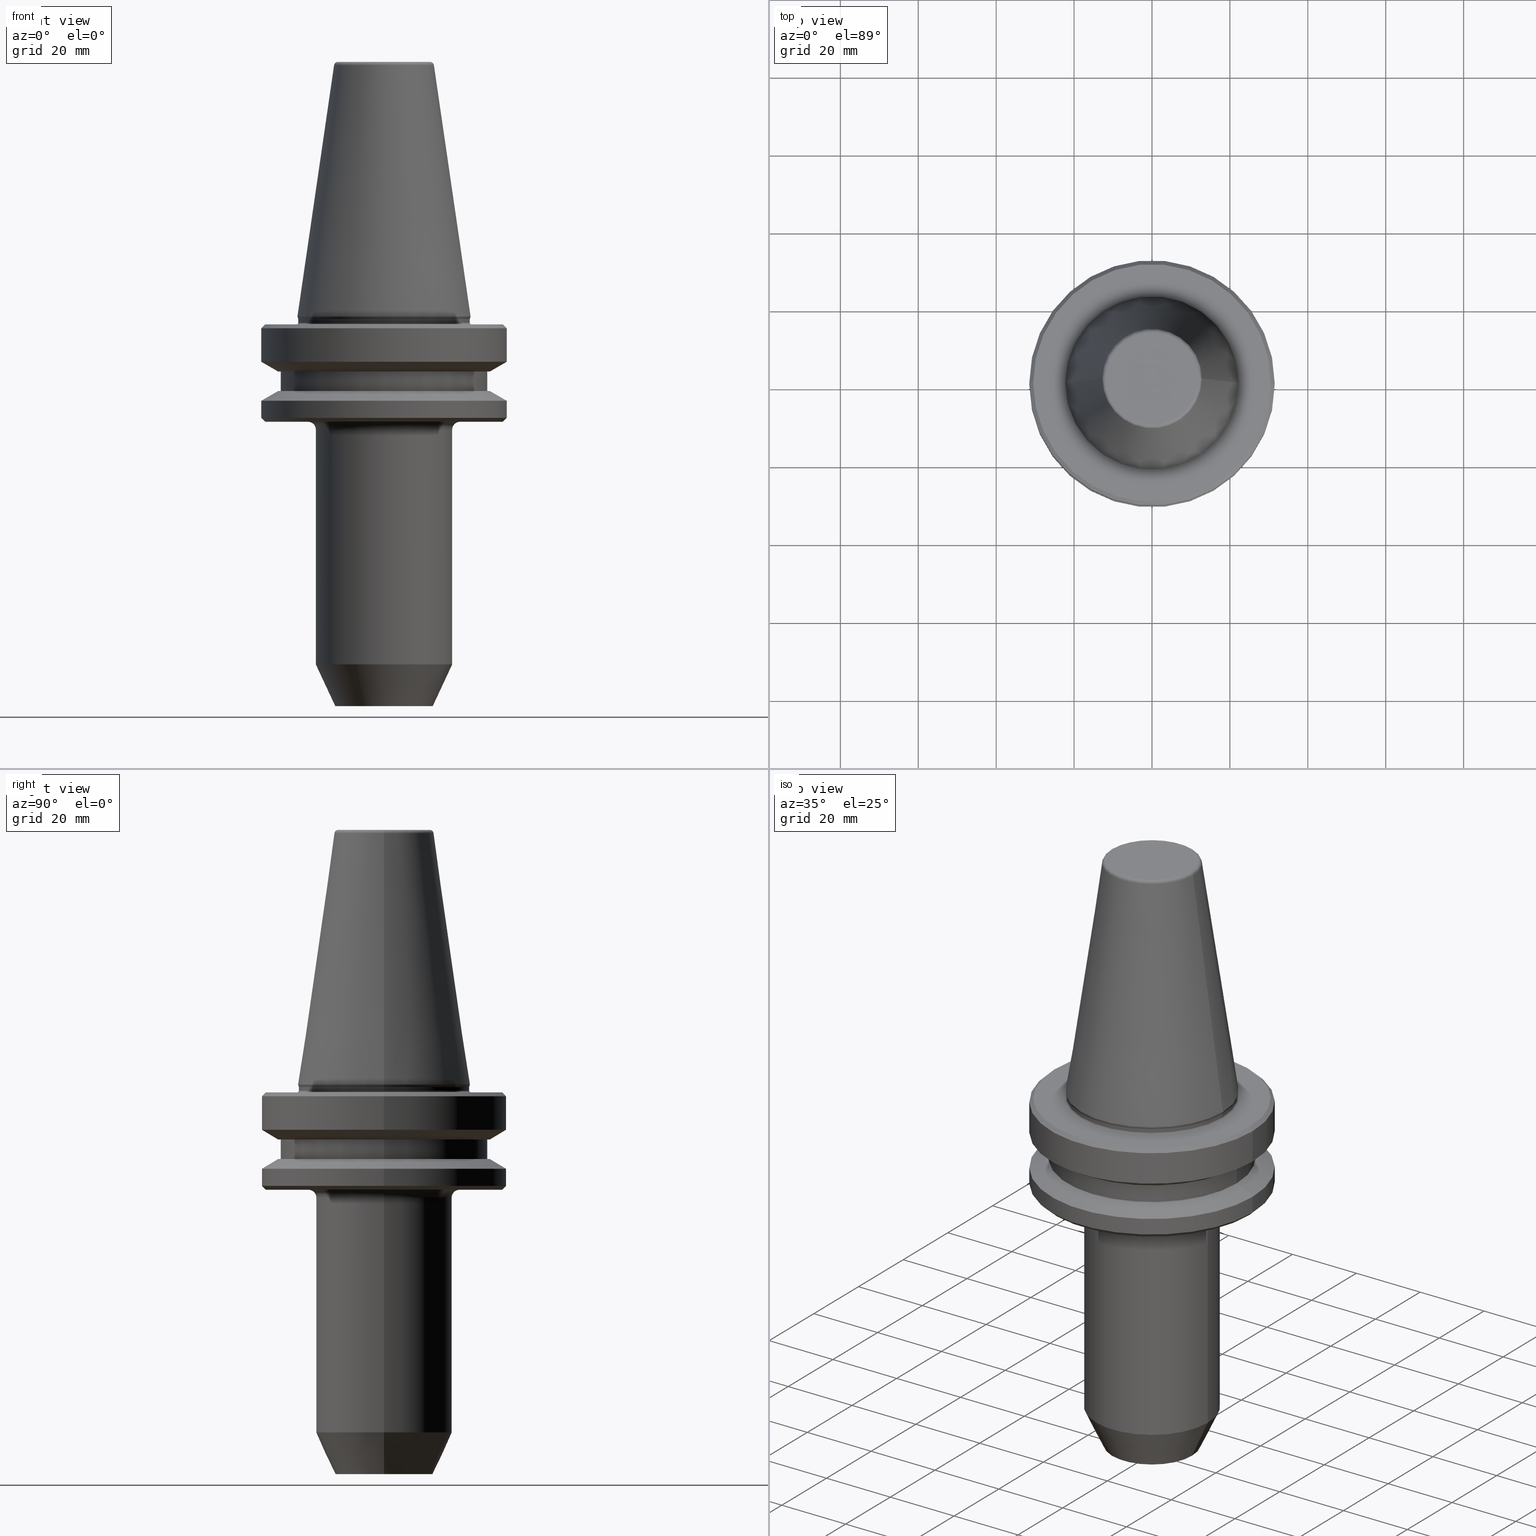
[diagram: canonical four-view strip — front | top / right | iso, engineering-drawing reading convention]
A machine part, canonical four-view strip (front | top / right | iso — engineering-drawing reading convention). The complete STEP part file that produces these views, byte-faithful:
ISO-10303-21;
HEADER;
FILE_DESCRIPTION (( 'STEP AP203' ),
    '1' );
FILE_NAME ('BT40 WE10 100 AD-6.3G15000 SL.STEP',
    '2019-05-22T08:06:51',
    ( '' ),
    ( '' ),
    'SwSTEP 2.0',
    'SolidWorks 2014',
    '' );
FILE_SCHEMA (( 'CONFIG_CONTROL_DESIGN' ));
ENDSEC;

DATA;
#1 = AXIS2_PLACEMENT_3D ( 'NONE', #122, #383, #121 ) ;
#2 = CARTESIAN_POINT ( 'NONE',  ( -22.22499999999982700, 0.0000000000000000000, 0.0000000000000000000 ) ) ;
#3 = ORIENTED_EDGE ( 'NONE', *, *, #458, .T. ) ;
#4 = DIRECTION ( 'NONE',  ( 1.000000000000000000, 0.0000000000000000000, 0.0000000000000000000 ) ) ;
#5 = DIRECTION ( 'NONE',  ( -0.0000000000000000000, -0.0000000000000000000, 1.000000000000000000 ) ) ;
#6 = CARTESIAN_POINT ( 'NONE',  ( 0.0000000000000000000, 0.0000000000000000000, -2.999999999999780600 ) ) ;
#7 = DIRECTION ( 'NONE',  ( 1.000000000000000000, 0.0000000000000000000, 0.0000000000000000000 ) ) ;
#8 = EDGE_CURVE ( 'NONE', #546, #375, #44, .T. ) ;
#9 = EDGE_CURVE ( 'NONE', #491, #874, #480, .T. ) ;
#10 = FACE_OUTER_BOUND ( 'NONE', #992, .T. ) ;
#11 = APPROVAL_DATE_TIME ( #243, #896 ) ;
#12 = ORIENTED_EDGE ( 'NONE', *, *, #380, .F. ) ;
#13 = ORIENTED_EDGE ( 'NONE', *, *, #1019, .F. ) ;
#14 = CARTESIAN_POINT ( 'NONE',  ( 0.0000000000000000000, 0.0000000000000000000, 64.54430818888884900 ) ) ;
#15 = CIRCLE ( 'NONE', #496, 22.49999999999985400 ) ;
#16 = ORIENTED_EDGE ( 'NONE', *, *, #254, .F. ) ;
#17 = DIRECTION ( 'NONE',  ( -0.8660254037844398200, 1.060575238724908400E-016, 0.4999999999999977200 ) ) ;
#18 = EDGE_CURVE ( 'NONE', #725, #610, #969, .T. ) ;
#19 = AXIS2_PLACEMENT_3D ( 'NONE', #433, #700, #968 ) ;
#20 = VERTEX_POINT ( 'NONE', #354 ) ;
#21 = DIRECTION ( 'NONE',  ( -0.0000000000000000000, -0.0000000000000000000, 1.000000000000000000 ) ) ;
#22 = CARTESIAN_POINT ( 'NONE',  ( 0.0000000000000000000, 0.0000000000000000000, -2.999999999999780600 ) ) ;
#23 = DIRECTION ( 'NONE',  ( 1.000000000000000000, 0.0000000000000000000, 0.0000000000000000000 ) ) ;
#24 = AXIS2_PLACEMENT_3D ( 'NONE', #961, #132, #406 ) ;
#25 = DIRECTION ( 'NONE',  ( -0.0000000000000000000, -0.0000000000000000000, 1.000000000000000000 ) ) ;
#26 = FACE_OUTER_BOUND ( 'NONE', #620, .T. ) ;
#27 = ORIENTED_EDGE ( 'NONE', *, *, #652, .T. ) ;
#28 = ORIENTED_EDGE ( 'NONE', *, *, #536, .F. ) ;
#29 = LINE ( 'NONE', #313, #292 ) ;
#30 = DIRECTION ( 'NONE',  ( -0.0000000000000000000, -0.0000000000000000000, 1.000000000000000000 ) ) ;
#31 = VECTOR ( 'NONE', #946, 1000.000000000000000 ) ;
#32 = CARTESIAN_POINT ( 'NONE',  ( -17.49999999999807400, 2.143131898507632400E-015, 118.8520854233388800 ) ) ;
#33 = ORIENTED_EDGE ( 'NONE', *, *, #238, .F. ) ;
#34 = EDGE_CURVE ( 'NONE', #304, #705, #984, .T. ) ;
#35 = CARTESIAN_POINT ( 'NONE',  ( 0.0000000000000000000, 0.0000000000000000000, 118.8520854233388800 ) ) ;
#36 = EDGE_CURVE ( 'NONE', #336, #839, #960, .T. ) ;
#37 = APPROVAL_ROLE ( '' ) ;
#38 = DIRECTION ( 'NONE',  ( 1.000000000000000000, 0.0000000000000000000, 0.0000000000000000000 ) ) ;
#39 = MANIFOLD_SOLID_BREP ( 'Revolve1', #774 ) ;
#40 = CARTESIAN_POINT ( 'NONE',  ( 0.0000000000000000000, 0.0000000000000000000, 0.0000000000000000000 ) ) ;
#41 = AXIS2_PLACEMENT_3D ( 'NONE', #789, #190, #439 ) ;
#42 = DIRECTION ( 'NONE',  ( -0.0000000000000000000, -0.0000000000000000000, 1.000000000000000000 ) ) ;
#43 = DIRECTION ( 'NONE',  ( -0.0000000000000000000, -0.0000000000000000000, 1.000000000000000000 ) ) ;
#44 = LINE ( 'NONE', #553, #371 ) ;
#45 = DIRECTION ( 'NONE',  ( -0.0000000000000000000, -0.0000000000000000000, 1.000000000000000000 ) ) ;
#46 = APPROVAL_PERSON_ORGANIZATION ( #276, #896, #37 ) ;
#47 = ORIENTED_EDGE ( 'NONE', *, *, #580, .T. ) ;
#48 = VECTOR ( 'NONE', #216, 1000.000000000000000 ) ;
#49 = APPLICATION_CONTEXT ( 'configuration controlled 3d designs of mechanical parts and assemblies' ) ;
#50 = CARTESIAN_POINT ( 'NONE',  ( -22.49999999999985400, 2.755455298081526600E-015, -1.499999999999779300 ) ) ;
#51 = COORDINATED_UNIVERSAL_TIME_OFFSET ( 5, 30, .AHEAD. ) ;
#52 = MECHANICAL_CONTEXT ( 'NONE', #462, 'mechanical' ) ;
#53 = AXIS2_PLACEMENT_3D ( 'NONE', #837, #588, #23 ) ;
#54 = CARTESIAN_POINT ( 'NONE',  ( 27.16962701892156000, 3.592478546794573200E-015, -19.10000000008742300 ) ) ;
#55 = PRODUCT_RELATED_PRODUCT_CATEGORY ( 'detail', '', ( #57 ) ) ;
#56 = CARTESIAN_POINT ( 'NONE',  ( 22.22499999999982700, 2.721777511104971500E-015, 0.0000000000000000000 ) ) ;
#57 = PRODUCT ( 'BT40 WE10 100 AD-6.3G15000 SL', 'BT40 WE10 100 AD-6.3G15000 SL', '', ( #52 ) ) ;
#58 = LINE ( 'NONE', #56, #448 ) ;
#59 = EDGE_CURVE ( 'NONE', #304, #171, #1047, .T. ) ;
#60 = ORIENTED_EDGE ( 'NONE', *, *, #683, .F. ) ;
#61 = VECTOR ( 'NONE', #718, 1000.000000000000000 ) ;
#62 = LINE ( 'NONE', #32, #285 ) ;
#63 = DIRECTION ( 'NONE',  ( 1.224646799147353200E-016, 1.000000000000000000, 0.0000000000000000000 ) ) ;
#64 = AXIS2_PLACEMENT_3D ( 'NONE', #150, #744, #230 ) ;
#65 = DIRECTION ( 'NONE',  ( -0.0000000000000000000, -0.0000000000000000000, 1.000000000000000000 ) ) ;
#66 = COORDINATED_UNIVERSAL_TIME_OFFSET ( 5, 30, .AHEAD. ) ;
#67 = DIRECTION ( 'NONE',  ( -0.0000000000000000000, -0.0000000000000000000, 1.000000000000000000 ) ) ;
#68 = ORIENTED_EDGE ( 'NONE', *, *, #345, .T. ) ;
#69 = CIRCLE ( 'NONE', #318, 0.5000000000000282000 ) ;
#70 = DIRECTION ( 'NONE',  ( 1.000000000000000000, 0.0000000000000000000, 0.0000000000000000000 ) ) ;
#71 = CARTESIAN_POINT ( 'NONE',  ( 31.49999999999986100, 0.0000000000000000000, 118.8520854233388800 ) ) ;
#72 = VERTEX_POINT ( 'NONE', #797 ) ;
#73 = ORIENTED_EDGE ( 'NONE', *, *, #647, .T. ) ;
#74 = AXIS2_PLACEMENT_3D ( 'NONE', #187, #287, #404 ) ;
#75 = ADVANCED_FACE ( 'NONE', ( #937 ), #169, .T. ) ;
#76 = AXIS2_PLACEMENT_3D ( 'NONE', #83, #682, #477 ) ;
#77 = CARTESIAN_POINT ( 'NONE',  ( 0.0000000000000000000, 0.0000000000000000000, -0.6887132116596972300 ) ) ;
#78 = ORIENTED_EDGE ( 'NONE', *, *, #560, .F. ) ;
#79 = DESIGN_CONTEXT ( 'detailed design', #49, 'design' ) ;
#80 = AXIS2_PLACEMENT_3D ( 'NONE', #606, #217, #387 ) ;
#81 = CARTESIAN_POINT ( 'NONE',  ( 0.0000000000000000000, 0.0000000000000000000, 118.8520854233388800 ) ) ;
#82 = ORIENTED_EDGE ( 'NONE', *, *, #189, .F. ) ;
#83 = CARTESIAN_POINT ( 'NONE',  ( 0.0000000000000000000, 0.0000000000000000000, -29.00000000008772000 ) ) ;
#84 = FACE_BOUND ( 'NONE', #640, .T. ) ;
#85 = AXIS2_PLACEMENT_3D ( 'NONE', #529, #398, #172 ) ;
#86 = ORIENTED_EDGE ( 'NONE', *, *, #1053, .F. ) ;
#87 = CIRCLE ( 'NONE', #925, 12.49999999999817900 ) ;
#88 = ORIENTED_EDGE ( 'NONE', *, *, #905, .F. ) ;
#89 = AXIS2_PLACEMENT_3D ( 'NONE', #22, #525, #940 ) ;
#90 = DIRECTION ( 'NONE',  ( -0.0000000000000000000, -0.0000000000000000000, 1.000000000000000000 ) ) ;
#91 = CARTESIAN_POINT ( 'NONE',  ( 31.49999999999986100, 0.0000000000000000000, -2.999999999999780600 ) ) ;
#92 = LINE ( 'NONE', #71, #996 ) ;
#93 = CARTESIAN_POINT ( 'NONE',  ( 0.0000000000000000000, 0.0000000000000000000, -100.0000000001122700 ) ) ;
#94 = EDGE_CURVE ( 'NONE', #610, #725, #405, .T. ) ;
#95 = CARTESIAN_POINT ( 'NONE',  ( 0.0000000000000000000, 0.0000000000000000000, -19.10000000008742300 ) ) ;
#96 = EDGE_CURVE ( 'NONE', #429, #20, #256, .T. ) ;
#97 = DIRECTION ( 'NONE',  ( 1.000000000000000000, 0.0000000000000000000, 0.0000000000000000000 ) ) ;
#98 = LOCAL_TIME ( 13, 36, 51.00000000000000000, #323 ) ;
#99 = VERTEX_POINT ( 'NONE', #512 ) ;
#100 = VERTEX_POINT ( 'NONE', #813 ) ;
#101 = CONICAL_SURFACE ( 'NONE', #670, 30.49999999999986100, 0.7853981633974482800 ) ;
#102 = CARTESIAN_POINT ( 'NONE',  ( -12.81220206925716500, 1.569042225414488200E-015, 64.54430818888884900 ) ) ;
#103 = VERTEX_POINT ( 'NONE', #870 ) ;
#104 = DIRECTION ( 'NONE',  ( 0.4226182617407009400, 0.0000000000000000000, 0.9063077870366492700 ) ) ;
#105 = DIRECTION ( 'NONE',  ( -0.0000000000000000000, -0.0000000000000000000, 1.000000000000000000 ) ) ;
#106 = PERSON_AND_ORGANIZATION_ROLE ( 'creator' ) ;
#107 = AXIS2_PLACEMENT_3D ( 'NONE', #551, #372, #456 ) ;
#108 = CC_DESIGN_PERSON_AND_ORGANIZATION_ASSIGNMENT ( #302, #558, ( #633 ) ) ;
#109 = FACE_OUTER_BOUND ( 'NONE', #247, .T. ) ;
#110 = DIRECTION ( 'NONE',  ( -0.0000000000000000000, -0.0000000000000000000, 1.000000000000000000 ) ) ;
#111 = DIRECTION ( 'NONE',  ( 1.000000000000000000, 0.0000000000000000000, 0.0000000000000000000 ) ) ;
#112 = CIRCLE ( 'NONE', #625, 31.50000000000008500 ) ;
#113 = VERTEX_POINT ( 'NONE', #543 ) ;
#114 = ADVANCED_FACE ( 'NONE', ( #109 ), #836, .F. ) ;
#115 = DIRECTION ( 'NONE',  ( -0.0000000000000000000, -0.0000000000000000000, 1.000000000000000000 ) ) ;
#116 = ORIENTED_EDGE ( 'NONE', *, *, #332, .T. ) ;
#117 = CARTESIAN_POINT ( 'NONE',  ( 0.0000000000000000000, 0.0000000000000000000, -1.999999999999779700 ) ) ;
#118 = CARTESIAN_POINT ( 'NONE',  ( -26.50000000000007800, 3.245314017740495600E-015, -14.09999999999965500 ) ) ;
#119 = CARTESIAN_POINT ( 'NONE',  ( 0.0000000000000000000, 0.0000000000000000000, -1.499999999999779300 ) ) ;
#120 = EDGE_CURVE ( 'NONE', #820, #450, #537, .T. ) ;
#121 = DIRECTION ( 'NONE',  ( 1.000000000000000000, 0.0000000000000000000, 0.0000000000000000000 ) ) ;
#122 = CARTESIAN_POINT ( 'NONE',  ( 0.0000000000000000000, 0.0000000000000000000, 118.8520854233388800 ) ) ;
#123 = ORIENTED_EDGE ( 'NONE', *, *, #8, .T. ) ;
#124 = ORGANIZATION ( 'UNSPECIFIED', 'UNSPECIFIED', '' ) ;
#125 = EDGE_LOOP ( 'NONE', ( #86, #221, #181, #693 ) ) ;
#126 = FACE_OUTER_BOUND ( 'NONE', #623, .T. ) ;
#127 = EDGE_CURVE ( 'NONE', #951, #781, #703, .T. ) ;
#128 = SECURITY_CLASSIFICATION ( '', '', #436 ) ;
#129 = DIRECTION ( 'NONE',  ( 1.000000000000000000, 0.0000000000000000000, 0.0000000000000000000 ) ) ;
#130 = DIRECTION ( 'NONE',  ( -0.3420201433262496900, 4.188538737684106900E-017, 0.9396926207856969300 ) ) ;
#131 = DIRECTION ( 'NONE',  ( -1.000000000000000000, 1.224646799147350700E-016, 0.0000000000000000000 ) ) ;
#132 = DIRECTION ( 'NONE',  ( 0.0000000000000000000, 0.0000000000000000000, 1.000000000000000000 ) ) ;
#133 = ADVANCED_FACE ( 'NONE', ( #801 ), #763, .F. ) ;
#134 = ORIENTED_EDGE ( 'NONE', *, *, #1024, .T. ) ;
#135 = ORIENTED_EDGE ( 'NONE', *, *, #399, .T. ) ;
#136 = EDGE_LOOP ( 'NONE', ( #601, #522, #556, #490 ) ) ;
#137 = CIRCLE ( 'NONE', #361, 19.49999999999807400 ) ;
#138 = ORIENTED_EDGE ( 'NONE', *, *, #397, .T. ) ;
#139 = ORIENTED_EDGE ( 'NONE', *, *, #729, .T. ) ;
#140 = ORIENTED_EDGE ( 'NONE', *, *, #300, .T. ) ;
#141 = AXIS2_PLACEMENT_3D ( 'NONE', #779, #307, #857 ) ;
#142 = DIRECTION ( 'NONE',  ( 1.000000000000000000, 0.0000000000000000000, 0.0000000000000000000 ) ) ;
#143 = ADVANCED_FACE ( 'NONE', ( #521 ), #231, .T. ) ;
#144 = CARTESIAN_POINT ( 'NONE',  ( 0.0000000000000000000, 0.0000000000000000000, -0.5519051543291797500 ) ) ;
#145 = ORIENTED_EDGE ( 'NONE', *, *, #729, .F. ) ;
#146 = EDGE_CURVE ( 'NONE', #839, #336, #266, .T. ) ;
#147 = ORIENTED_EDGE ( 'NONE', *, *, #498, .F. ) ;
#148 = FACE_BOUND ( 'NONE', #677, .T. ) ;
#149 = CARTESIAN_POINT ( 'NONE',  ( 27.16962701892278200, 0.0000000000000000000, -14.09999999999965500 ) ) ;
#150 = CARTESIAN_POINT ( 'NONE',  ( 0.0000000000000000000, 0.0000000000000000000, -2.999999999999780600 ) ) ;
#151 = ORIENTED_EDGE ( 'NONE', *, *, #536, .T. ) ;
#152 = DIRECTION ( 'NONE',  ( -1.000000000000000000, 0.0000000000000000000, 0.0000000000000000000 ) ) ;
#153 = AXIS2_PLACEMENT_3D ( 'NONE', #513, #965, #38 ) ;
#154 = CARTESIAN_POINT ( 'NONE',  ( 0.0000000000000000000, 0.0000000000000000000, -19.10000000008742300 ) ) ;
#155 = DIRECTION ( 'NONE',  ( -0.0000000000000000000, -0.0000000000000000000, 1.000000000000000000 ) ) ;
#156 = CC_DESIGN_APPROVAL ( #696, ( #633 ) ) ;
#157 = EDGE_LOOP ( 'NONE', ( #792, #772 ) ) ;
#158 = ORIENTED_EDGE ( 'NONE', *, *, #605, .T. ) ;
#159 = CONICAL_SURFACE ( 'NONE', #742, 22.22499999999982700, 0.1448138077623203600 ) ;
#160 = CIRCLE ( 'NONE', #794, 2.000000000000001800 ) ;
#161 = CARTESIAN_POINT ( 'NONE',  ( 0.0000000000000000000, 0.0000000000000000000, -21.60014200640457500 ) ) ;
#162 = ORIENTED_EDGE ( 'NONE', *, *, #637, .T. ) ;
#163 = EDGE_LOOP ( 'NONE', ( #293, #757 ) ) ;
#164 = AXIS2_PLACEMENT_3D ( 'NONE', #624, #42, #649 ) ;
#165 = CARTESIAN_POINT ( 'NONE',  ( -31.50000000000008500, 3.857637417314172900E-015, -26.00000000008749600 ) ) ;
#166 = DIRECTION ( 'NONE',  ( -0.0000000000000000000, -0.0000000000000000000, 1.000000000000000000 ) ) ;
#167 = EDGE_CURVE ( 'NONE', #651, #839, #327, .T. ) ;
#168 = DIRECTION ( 'NONE',  ( -0.0000000000000000000, -0.0000000000000000000, 1.000000000000000000 ) ) ;
#169 = CONICAL_SURFACE ( 'NONE', #982, 31.50000000000008500, 1.047197551196600500 ) ;
#170 = DIRECTION ( 'NONE',  ( -1.000000000000000000, 1.224646799147353500E-016, 0.0000000000000000000 ) ) ;
#171 = VERTEX_POINT ( 'NONE', #737 ) ;
#172 = DIRECTION ( 'NONE',  ( 1.000000000000000000, 0.0000000000000000000, 0.0000000000000000000 ) ) ;
#173 = LINE ( 'NONE', #577, #531 ) ;
#174 = AXIS2_PLACEMENT_3D ( 'NONE', #912, #701, #70 ) ;
#175 = EDGE_LOOP ( 'NONE', ( #335, #671, #582, #147 ) ) ;
#176 = FACE_OUTER_BOUND ( 'NONE', #136, .T. ) ;
#177 = ORIENTED_EDGE ( 'NONE', *, *, #330, .T. ) ;
#178 = EDGE_LOOP ( 'NONE', ( #805, #641, #1000, #1015 ) ) ;
#179 = AXIS2_PLACEMENT_3D ( 'NONE', #119, #363, #129 ) ;
#180 = ORIENTED_EDGE ( 'NONE', *, *, #254, .T. ) ;
#181 = ORIENTED_EDGE ( 'NONE', *, *, #146, .T. ) ;
#182 = CONICAL_SURFACE ( 'NONE', #202, 12.49999999999817900, 0.4363323129985840500 ) ;
#183 = ORIENTED_EDGE ( 'NONE', *, *, #501, .T. ) ;
#184 = DIRECTION ( 'NONE',  ( 1.000000000000000000, 0.0000000000000000000, 0.0000000000000000000 ) ) ;
#185 = EDGE_LOOP ( 'NONE', ( #233, #574, #555, #967 ) ) ;
#186 = CARTESIAN_POINT ( 'NONE',  ( 19.49999999999807400, 0.0000000000000000000, -29.00000000008773400 ) ) ;
#187 = CARTESIAN_POINT ( 'NONE',  ( 0.0000000000000000000, 0.0000000000000000000, -0.6887132116596972300 ) ) ;
#188 = DIRECTION ( 'NONE',  ( -0.0000000000000000000, -0.0000000000000000000, 1.000000000000000000 ) ) ;
#189 = EDGE_CURVE ( 'NONE', #952, #919, #589, .T. ) ;
#190 = DIRECTION ( 'NONE',  ( -0.0000000000000000000, -0.0000000000000000000, 1.000000000000000000 ) ) ;
#191 = CARTESIAN_POINT ( 'NONE',  ( -11.82266927716801800, 1.447859408766156600E-015, 64.40000000000067400 ) ) ;
#192 = DIRECTION ( 'NONE',  ( 0.0000000000000000000, 0.0000000000000000000, -1.000000000000000000 ) ) ;
#193 = CARTESIAN_POINT ( 'NONE',  ( 0.0000000000000000000, 0.0000000000000000000, -27.00000000008771700 ) ) ;
#194 = CARTESIAN_POINT ( 'NONE',  ( 0.0000000000000000000, 0.0000000000000000000, -21.60014200640457500 ) ) ;
#195 = ORIENTED_EDGE ( 'NONE', *, *, #34, .F. ) ;
#196 = CIRCLE ( 'NONE', #726, 19.49999999999807400 ) ;
#197 = EDGE_LOOP ( 'NONE', ( #628, #82 ) ) ;
#198 = ORIENTED_EDGE ( 'NONE', *, *, #659, .T. ) ;
#199 = CIRCLE ( 'NONE', #449, 0.5000000000000282000 ) ;
#200 = DIRECTION ( 'NONE',  ( 0.0000000000000000000, -1.000000000000000000, 0.0000000000000000000 ) ) ;
#201 = ADVANCED_FACE ( 'NONE', ( #655 ), #848, .T. ) ;
#202 = AXIS2_PLACEMENT_3D ( 'NONE', #341, #833, #184 ) ;
#203 = EDGE_CURVE ( 'NONE', #268, #72, #426, .T. ) ;
#204 = ORIENTED_EDGE ( 'NONE', *, *, #238, .T. ) ;
#205 = CARTESIAN_POINT ( 'NONE',  ( -11.82266927716813000, 1.508450817090329900E-015, 65.40000000000067400 ) ) ;
#206 = CARTESIAN_POINT ( 'NONE',  ( 31.49999999999986100, 3.857637417314145300E-015, -2.999999999999780600 ) ) ;
#207 = ADVANCED_FACE ( 'NONE', ( #1036 ), #159, .T. ) ;
#208 = APPROVAL ( #421, 'UNSPECIFIED' ) ;
#209 =( NAMED_UNIT ( * ) SI_UNIT ( $, .STERADIAN. ) SOLID_ANGLE_UNIT ( ) );
#210 = COORDINATED_UNIVERSAL_TIME_OFFSET ( 5, 30, .AHEAD. ) ;
#211 = CARTESIAN_POINT ( 'NONE',  ( 0.0000000000000000000, 0.0000000000000000000, -21.60014200640457500 ) ) ;
#212 = ORIENTED_EDGE ( 'NONE', *, *, #459, .T. ) ;
#213 = TOROIDAL_SURFACE ( 'NONE', #962, 22.49999999999985400, 0.5000000000000282000 ) ;
#214 = ORIENTED_EDGE ( 'NONE', *, *, #34, .T. ) ;
#215 = ORIENTED_EDGE ( 'NONE', *, *, #36, .F. ) ;
#216 = DIRECTION ( 'NONE',  ( -0.0000000000000000000, -0.0000000000000000000, 1.000000000000000000 ) ) ;
#217 = DIRECTION ( 'NONE',  ( -0.0000000000000000000, -0.0000000000000000000, 1.000000000000000000 ) ) ;
#218 = DIRECTION ( 'NONE',  ( 0.0000000000000000000, -1.000000000000000000, 0.0000000000000000000 ) ) ;
#219 = AXIS2_PLACEMENT_3D ( 'NONE', #446, #329, #142 ) ;
#220 = PRODUCT_DEFINITION_SHAPE ( 'NONE', 'NONE',  #633 ) ;
#221 = ORIENTED_EDGE ( 'NONE', *, *, #167, .T. ) ;
#222 = AXIS2_PLACEMENT_3D ( 'NONE', #35, #547, #4 ) ;
#223 = FACE_OUTER_BOUND ( 'NONE', #785, .T. ) ;
#224 = CARTESIAN_POINT ( 'NONE',  ( 12.49999999999817900, 0.0000000000000000000, -100.0000000001122700 ) ) ;
#225 = ORIENTED_EDGE ( 'NONE', *, *, #498, .T. ) ;
#226 = VECTOR ( 'NONE', #17, 1000.000000000000100 ) ;
#227 = VERTEX_POINT ( 'NONE', #309 ) ;
#228 = DIRECTION ( 'NONE',  ( 1.000000000000000000, 0.0000000000000000000, 0.0000000000000000000 ) ) ;
#229 = ORIENTED_EDGE ( 'NONE', *, *, #765, .T. ) ;
#230 = DIRECTION ( 'NONE',  ( 1.000000000000000000, 0.0000000000000000000, 0.0000000000000000000 ) ) ;
#231 = CONICAL_SURFACE ( 'NONE', #236, 27.16962701892278200, 1.047197551196600300 ) ;
#232 = CC_DESIGN_APPROVAL ( #896, ( #858 ) ) ;
#233 = ORIENTED_EDGE ( 'NONE', *, *, #910, .T. ) ;
#234 = ADVANCED_FACE ( 'NONE', ( #242 ), #790, .T. ) ;
#235 = DIRECTION ( 'NONE',  ( 1.000000000000000000, 0.0000000000000000000, 0.0000000000000000000 ) ) ;
#236 = AXIS2_PLACEMENT_3D ( 'NONE', #936, #90, #565 ) ;
#237 =( LENGTH_UNIT ( ) NAMED_UNIT ( * ) SI_UNIT ( .MILLI., .METRE. ) );
#238 = EDGE_CURVE ( 'NONE', #279, #491, #686, .T. ) ;
#239 = CARTESIAN_POINT ( 'NONE',  ( -31.50000000000008500, 3.857637417314172900E-015, 118.8520854233388800 ) ) ;
#240 = DIRECTION ( 'NONE',  ( -0.7071067811865474600, 0.0000000000000000000, -0.7071067811865475700 ) ) ;
#241 = CARTESIAN_POINT ( 'NONE',  ( 0.0000000000000000000, 0.0000000000000000000, -1.499999999999779300 ) ) ;
#242 = FACE_OUTER_BOUND ( 'NONE', #178, .T. ) ;
#243 = DATE_AND_TIME ( #463, #662 ) ;
#244 = DIRECTION ( 'NONE',  ( 1.000000000000000000, 0.0000000000000000000, 0.0000000000000000000 ) ) ;
#245 = AXIS2_PLACEMENT_3D ( 'NONE', #716, #764, #955 ) ;
#246 = FACE_OUTER_BOUND ( 'NONE', #762, .T. ) ;
#247 = EDGE_LOOP ( 'NONE', ( #828, #861, #358, #879 ) ) ;
#248 = DIRECTION ( 'NONE',  ( 1.000000000000000000, 0.0000000000000000000, 0.0000000000000000000 ) ) ;
#249 = APPROVAL_DATE_TIME ( #470, #208 ) ;
#250 = DIRECTION ( 'NONE',  ( 1.000000000000000000, 0.0000000000000000000, 0.0000000000000000000 ) ) ;
#251 = LINE ( 'NONE', #224, #417 ) ;
#252 = DIRECTION ( 'NONE',  ( -0.0000000000000000000, -0.0000000000000000000, 1.000000000000000000 ) ) ;
#253 = CONICAL_SURFACE ( 'NONE', #648, 31.49999999999986100, 0.7853981633974482800 ) ;
#254 = EDGE_CURVE ( 'NONE', #467, #373, #816, .T. ) ;
#255 = CARTESIAN_POINT ( 'NONE',  ( 0.0000000000000000000, 0.0000000000000000000, -1.499999999999779300 ) ) ;
#256 = CIRCLE ( 'NONE', #846, 12.49999999999817900 ) ;
#257 = ORIENTED_EDGE ( 'NONE', *, *, #1024, .F. ) ;
#258 = TOROIDAL_SURFACE ( 'NONE', #141, 11.82266927716801800, 0.9999999999999742400 ) ;
#259 = ADVANCED_FACE ( 'NONE', ( #597 ), #294, .T. ) ;
#260 = ORIENTED_EDGE ( 'NONE', *, *, #380, .T. ) ;
#261 = EDGE_LOOP ( 'NONE', ( #972, #906, #123, #796 ) ) ;
#262 = CONICAL_SURFACE ( 'NONE', #476, 22.02412295168552700, 0.3490658503994841800 ) ;
#263 = DIRECTION ( 'NONE',  ( -1.000000000000000000, 0.0000000000000000000, 0.0000000000000000000 ) ) ;
#264 = CARTESIAN_POINT ( 'NONE',  ( 0.0000000000000000000, 0.0000000000000000000, -27.00000000008771700 ) ) ;
#265 = CARTESIAN_POINT ( 'NONE',  ( 11.82266927716801800, 0.0000000000000000000, 64.40000000000067400 ) ) ;
#266 = CIRCLE ( 'NONE', #509, 21.99999999999979700 ) ;
#267 = DIRECTION ( 'NONE',  ( -0.0000000000000000000, -0.0000000000000000000, 1.000000000000000000 ) ) ;
#268 = VERTEX_POINT ( 'NONE', #165 ) ;
#269 = AXIS2_PLACEMENT_3D ( 'NONE', #321, #949, #920 ) ;
#270 = DIRECTION ( 'NONE',  ( 0.0000000000000000000, 0.0000000000000000000, -1.000000000000000000 ) ) ;
#271 = AXIS2_PLACEMENT_3D ( 'NONE', #382, #1007, #244 ) ;
#272 = DIRECTION ( 'NONE',  ( 1.000000000000000000, 0.0000000000000000000, 0.0000000000000000000 ) ) ;
#273 = DIRECTION ( 'NONE',  ( 1.000000000000000000, 0.0000000000000000000, 0.0000000000000000000 ) ) ;
#274 = DIRECTION ( 'NONE',  ( 1.000000000000000000, 0.0000000000000000000, 0.0000000000000000000 ) ) ;
#275 = CIRCLE ( 'NONE', #643, 2.000000000000001800 ) ;
#276 = PERSON_AND_ORGANIZATION ( #859, #124 ) ;
#277 = EDGE_LOOP ( 'NONE', ( #13, #795, #27, #140 ) ) ;
#278 = LINE ( 'NONE', #842, #48 ) ;
#279 = VERTEX_POINT ( 'NONE', #102 ) ;
#280 = ORIENTED_EDGE ( 'NONE', *, *, #979, .F. ) ;
#281 = APPROVAL_PERSON_ORGANIZATION ( #453, #208, #980 ) ;
#282 = CARTESIAN_POINT ( 'NONE',  ( -12.49999999999817900, 1.530808498933968500E-015, -100.0000000001122700 ) ) ;
#283 = ADVANCED_FACE ( 'NONE', ( #10 ), #862, .T. ) ;
#284 = AXIS2_PLACEMENT_3D ( 'NONE', #193, #710, #991 ) ;
#285 = VECTOR ( 'NONE', #1030, 1000.000000000000000 ) ;
#286 = CARTESIAN_POINT ( 'NONE',  ( 0.0000000000000000000, 0.0000000000000000000, 65.40000000000067400 ) ) ;
#287 = DIRECTION ( 'NONE',  ( -0.0000000000000000000, -0.0000000000000000000, 1.000000000000000000 ) ) ;
#288 = CIRCLE ( 'NONE', #89, 31.49999999999986100 ) ;
#289 = CARTESIAN_POINT ( 'NONE',  ( 0.0000000000000000000, 0.0000000000000000000, 118.8520854233388800 ) ) ;
#290 = CARTESIAN_POINT ( 'NONE',  ( 21.99999999999981200, 0.0000000000000000000, 118.8520854233388800 ) ) ;
#291 = EDGE_LOOP ( 'NONE', ( #280, #557, #139, #370 ) ) ;
#292 = VECTOR ( 'NONE', #935, 1000.000000000000000 ) ;
#293 = ORIENTED_EDGE ( 'NONE', *, *, #94, .T. ) ;
#294 = CONICAL_SURFACE ( 'NONE', #269, 30.49999999999986100, 0.7853981633974482800 ) ;
#295 = AXIS2_PLACEMENT_3D ( 'NONE', #523, #166, #248 ) ;
#296 = CARTESIAN_POINT ( 'NONE',  ( -27.16962701892278200, 3.592478546794634700E-015, -14.09999999999965500 ) ) ;
#297 = AXIS2_PLACEMENT_3D ( 'NONE', #730, #67, #235 ) ;
#298 = DIRECTION ( 'NONE',  ( 0.0000000000000000000, 0.0000000000000000000, -1.000000000000000000 ) ) ;
#299 = CARTESIAN_POINT ( 'NONE',  ( 0.0000000000000000000, 0.0000000000000000000, -21.60014200640457500 ) ) ;
#300 = EDGE_CURVE ( 'NONE', #99, #375, #427, .T. ) ;
#301 = DIRECTION ( 'NONE',  ( -0.0000000000000000000, -0.0000000000000000000, 1.000000000000000000 ) ) ;
#302 = PERSON_AND_ORGANIZATION ( #859, #124 ) ;
#303 = ORIENTED_EDGE ( 'NONE', *, *, #9, .T. ) ;
#304 = VERTEX_POINT ( 'NONE', #563 ) ;
#305 = CIRCLE ( 'NONE', #107, 17.49999999999807400 ) ;
#306 = CARTESIAN_POINT ( 'NONE',  ( 22.22499999999982700, 0.0000000000000000000, 0.0000000000000000000 ) ) ;
#307 = DIRECTION ( 'NONE',  ( -0.0000000000000000000, -0.0000000000000000000, 1.000000000000000000 ) ) ;
#308 = AXIS2_PLACEMENT_3D ( 'NONE', #821, #301, #983 ) ;
#309 = CARTESIAN_POINT ( 'NONE',  ( 30.49999999999986100, 0.0000000000000000000, -27.00000000008771700 ) ) ;
#310 = EDGE_CURVE ( 'NONE', #1050, #171, #275, .T. ) ;
#311 = CARTESIAN_POINT ( 'NONE',  ( 31.49999999999986100, 0.0000000000000000000, -11.59985799368333500 ) ) ;
#312 = DIRECTION ( 'NONE',  ( -1.000000000000000000, 1.224646799147352500E-016, 0.0000000000000000000 ) ) ;
#313 = CARTESIAN_POINT ( 'NONE',  ( 31.50000000000008500, 0.0000000000000000000, 118.8520854233388800 ) ) ;
#314 = VECTOR ( 'NONE', #110, 1000.000000000000000 ) ;
#315 = ORIENTED_EDGE ( 'NONE', *, *, #399, .F. ) ;
#316 = CARTESIAN_POINT ( 'NONE',  ( -30.49999999999986100, 3.735172737399410200E-015, -27.00000000008771700 ) ) ;
#317 = EDGE_CURVE ( 'NONE', #781, #839, #1004, .T. ) ;
#318 = AXIS2_PLACEMENT_3D ( 'NONE', #414, #200, #986 ) ;
#319 = ORIENTED_EDGE ( 'NONE', *, *, #8, .F. ) ;
#320 = EDGE_CURVE ( 'NONE', #113, #337, #506, .T. ) ;
#321 = CARTESIAN_POINT ( 'NONE',  ( 0.0000000000000000000, 0.0000000000000000000, -27.00000000008771700 ) ) ;
#322 = DIRECTION ( 'NONE',  ( 1.000000000000000000, 0.0000000000000000000, 0.0000000000000000000 ) ) ;
#323 = COORDINATED_UNIVERSAL_TIME_OFFSET ( 5, 30, .AHEAD. ) ;
#324 = EDGE_LOOP ( 'NONE', ( #60, #16, #183, #393 ) ) ;
#325 = CIRCLE ( 'NONE', #944, 30.49999999999986100 ) ;
#326 = CARTESIAN_POINT ( 'NONE',  ( 21.99999999999982600, 0.0000000000000000000, -1.499999999999779300 ) ) ;
#327 = CIRCLE ( 'NONE', #367, 0.4000000000000600300 ) ;
#328 = AXIS2_PLACEMENT_3D ( 'NONE', #860, #482, #355 ) ;
#329 = DIRECTION ( 'NONE',  ( 0.0000000000000000000, -0.0000000000000000000, 1.000000000000000000 ) ) ;
#330 = EDGE_CURVE ( 'NONE', #20, #705, #645, .T. ) ;
#331 = DIRECTION ( 'NONE',  ( -0.0000000000000000000, -0.0000000000000000000, 1.000000000000000000 ) ) ;
#332 = EDGE_CURVE ( 'NONE', #1003, #337, #92, .T. ) ;
#333 = DIRECTION ( 'NONE',  ( 1.000000000000000000, 0.0000000000000000000, 0.0000000000000000000 ) ) ;
#334 = FACE_OUTER_BOUND ( 'NONE', #722, .T. ) ;
#335 = ORIENTED_EDGE ( 'NONE', *, *, #923, .T. ) ;
#336 = VERTEX_POINT ( 'NONE', #500 ) ;
#337 = VERTEX_POINT ( 'NONE', #91 ) ;
#338 = CIRCLE ( 'NONE', #987, 0.9999999999999731300 ) ;
#339 = CARTESIAN_POINT ( 'NONE',  ( 0.0000000000000000000, 0.0000000000000000000, -27.00000000008771700 ) ) ;
#340 = ORIENTED_EDGE ( 'NONE', *, *, #94, .F. ) ;
#341 = CARTESIAN_POINT ( 'NONE',  ( 0.0000000000000000000, 0.0000000000000000000, -100.0000000001122700 ) ) ;
#342 = CIRCLE ( 'NONE', #728, 11.82266927716813000 ) ;
#343 = AXIS2_PLACEMENT_3D ( 'NONE', #241, #1046, #766 ) ;
#344 = CARTESIAN_POINT ( 'NONE',  ( 22.49999999999985400, 0.0000000000000000000, -1.999999999999793500 ) ) ;
#345 = EDGE_CURVE ( 'NONE', #227, #600, #898, .T. ) ;
#346 = EDGE_LOOP ( 'NONE', ( #78, #134, #68, #527 ) ) ;
#347 = FACE_OUTER_BOUND ( 'NONE', #806, .T. ) ;
#348 = ORIENTED_EDGE ( 'NONE', *, *, #581, .T. ) ;
#349 = EDGE_CURVE ( 'NONE', #874, #491, #342, .T. ) ;
#350 = ADVANCED_FACE ( 'NONE', ( #415 ), #676, .T. ) ;
#351 = AXIS2_PLACEMENT_3D ( 'NONE', #613, #971, #495 ) ;
#352 = ADVANCED_FACE ( 'NONE', ( #579, #753 ), #473, .F. ) ;
#353 = EDGE_CURVE ( 'NONE', #781, #951, #377, .T. ) ;
#354 = CARTESIAN_POINT ( 'NONE',  ( -12.49999999999817900, 1.836970198720800400E-015, -100.0000000001122700 ) ) ;
#355 = DIRECTION ( 'NONE',  ( 1.000000000000000000, 0.0000000000000000000, 0.0000000000000000000 ) ) ;
#356 = DIRECTION ( 'NONE',  ( -0.0000000000000000000, -0.0000000000000000000, 1.000000000000000000 ) ) ;
#357 = ORIENTED_EDGE ( 'NONE', *, *, #979, .T. ) ;
#358 = ORIENTED_EDGE ( 'NONE', *, *, #658, .T. ) ;
#359 = CYLINDRICAL_SURFACE ( 'NONE', #328, 31.50000000000008500 ) ;
#360 = ORIENTED_EDGE ( 'NONE', *, *, #96, .T. ) ;
#361 = AXIS2_PLACEMENT_3D ( 'NONE', #339, #188, #603 ) ;
#362 = ORIENTED_EDGE ( 'NONE', *, *, #353, .F. ) ;
#363 = DIRECTION ( 'NONE',  ( -0.0000000000000000000, -0.0000000000000000000, 1.000000000000000000 ) ) ;
#364 = ORIENTED_EDGE ( 'NONE', *, *, #1019, .T. ) ;
#365 = CARTESIAN_POINT ( 'NONE',  ( 0.0000000000000000000, 0.0000000000000000000, -27.00000000008771700 ) ) ;
#366 = CARTESIAN_POINT ( 'NONE',  ( 0.0000000000000000000, 26.50000000000007800, -19.10000000008743700 ) ) ;
#367 = AXIS2_PLACEMENT_3D ( 'NONE', #690, #401, #981 ) ;
#368 = DIRECTION ( 'NONE',  ( 1.000000000000000000, 0.0000000000000000000, 0.0000000000000000000 ) ) ;
#369 = DIRECTION ( 'NONE',  ( -0.7071067811865474600, 8.659560562354931600E-017, 0.7071067811865475700 ) ) ;
#370 = ORIENTED_EDGE ( 'NONE', *, *, #18, .F. ) ;
#371 = VECTOR ( 'NONE', #1033, 1000.000000000000000 ) ;
#372 = DIRECTION ( 'NONE',  ( -0.0000000000000000000, -0.0000000000000000000, 1.000000000000000000 ) ) ;
#373 = VERTEX_POINT ( 'NONE', #54 ) ;
#374 = LINE ( 'NONE', #2, #928 ) ;
#375 = VERTEX_POINT ( 'NONE', #306 ) ;
#376 = CIRCLE ( 'NONE', #297, 31.50000000000008500 ) ;
#377 = CIRCLE ( 'NONE', #343, 21.99999999999982600 ) ;
#378 = DIRECTION ( 'NONE',  ( 1.000000000000000000, 0.0000000000000000000, 0.0000000000000000000 ) ) ;
#379 = EDGE_CURVE ( 'NONE', #504, #874, #338, .T. ) ;
#380 = EDGE_CURVE ( 'NONE', #171, #707, #678, .T. ) ;
#381 = ADVANCED_FACE ( 'NONE', ( #422 ), #253, .T. ) ;
#382 = CARTESIAN_POINT ( 'NONE',  ( 0.0000000000000000000, 0.0000000000000000000, -14.09999999999965500 ) ) ;
#383 = DIRECTION ( 'NONE',  ( -0.0000000000000000000, -0.0000000000000000000, 1.000000000000000000 ) ) ;
#384 = FACE_OUTER_BOUND ( 'NONE', #175, .T. ) ;
#385 = DIRECTION ( 'NONE',  ( 1.000000000000000000, 0.0000000000000000000, 0.0000000000000000000 ) ) ;
#386 = ORIENTED_EDGE ( 'NONE', *, *, #559, .T. ) ;
#387 = DIRECTION ( 'NONE',  ( 1.000000000000000000, 0.0000000000000000000, 0.0000000000000000000 ) ) ;
#388 = AXIS2_PLACEMENT_3D ( 'NONE', #77, #618, #272 ) ;
#389 = AXIS2_PLACEMENT_3D ( 'NONE', #825, #877, #746 ) ;
#390 = DIRECTION ( 'NONE',  ( 0.8660254037844398200, 0.0000000000000000000, 0.4999999999999977200 ) ) ;
#391 = DIRECTION ( 'NONE',  ( -0.0000000000000000000, -0.0000000000000000000, 1.000000000000000000 ) ) ;
#392 = AXIS2_PLACEMENT_3D ( 'NONE', #475, #5, #274 ) ;
#393 = ORIENTED_EDGE ( 'NONE', *, *, #442, .T. ) ;
#394 = SHAPE_DEFINITION_REPRESENTATION ( #220, #998 ) ;
#395 = VECTOR ( 'NONE', #369, 1000.000000000000000 ) ;
#396 = CARTESIAN_POINT ( 'NONE',  ( 0.0000000000000000000, 0.0000000000000000000, -26.00000000008749600 ) ) ;
#397 = EDGE_CURVE ( 'NONE', #429, #304, #251, .T. ) ;
#398 = DIRECTION ( 'NONE',  ( -0.0000000000000000000, -0.0000000000000000000, 1.000000000000000000 ) ) ;
#399 = EDGE_CURVE ( 'NONE', #375, #99, #885, .T. ) ;
#400 = ORIENTED_EDGE ( 'NONE', *, *, #455, .T. ) ;
#401 = DIRECTION ( 'NONE',  ( 1.224646799147353200E-016, 1.000000000000000000, 0.0000000000000000000 ) ) ;
#402 = DIRECTION ( 'NONE',  ( -0.0000000000000000000, -0.0000000000000000000, 1.000000000000000000 ) ) ;
#403 = AXIS2_PLACEMENT_3D ( 'NONE', #191, #735, #312 ) ;
#404 = DIRECTION ( 'NONE',  ( 1.000000000000000000, 0.0000000000000000000, 0.0000000000000000000 ) ) ;
#405 = CIRCLE ( 'NONE', #41, 26.50000000000007800 ) ;
#406 = DIRECTION ( 'NONE',  ( 1.000000000000000000, 0.0000000000000000000, 0.0000000000000000000 ) ) ;
#407 = EDGE_CURVE ( 'NONE', #705, #707, #62, .T. ) ;
#408 = FACE_OUTER_BOUND ( 'NONE', #691, .T. ) ;
#409 = DIRECTION ( 'NONE',  ( 0.0000000000000000000, 0.0000000000000000000, -1.000000000000000000 ) ) ;
#410 = ORIENTED_EDGE ( 'NONE', *, *, #459, .F. ) ;
#411 = CARTESIAN_POINT ( 'NONE',  ( 0.0000000000000000000, 0.0000000000000000000, -0.6887132116596972300 ) ) ;
#412 = ORIENTED_EDGE ( 'NONE', *, *, #947, .T. ) ;
#413 = DIRECTION ( 'NONE',  ( -0.0000000000000000000, -0.0000000000000000000, 1.000000000000000000 ) ) ;
#414 = CARTESIAN_POINT ( 'NONE',  ( 22.49999999999985400, 0.0000000000000000000, -1.499999999999779300 ) ) ;
#415 = FACE_OUTER_BOUND ( 'NONE', #751, .T. ) ;
#416 = AXIS2_PLACEMENT_3D ( 'NONE', #948, #356, #333 ) ;
#417 = VECTOR ( 'NONE', #104, 1000.000000000000000 ) ;
#418 = CARTESIAN_POINT ( 'NONE',  ( 19.49999999999807400, 0.0000000000000000000, -27.00000000008772400 ) ) ;
#419 = CYLINDRICAL_SURFACE ( 'NONE', #85, 17.49999999999807400 ) ;
#420 = ORIENTED_EDGE ( 'NONE', *, *, #379, .T. ) ;
#421 = APPROVAL_STATUS ( 'not_yet_approved' ) ;
#422 = FACE_OUTER_BOUND ( 'NONE', #964, .T. ) ;
#423 = CIRCLE ( 'NONE', #798, 12.81220206925715000 ) ;
#424 = ORIENTED_EDGE ( 'NONE', *, *, #905, .T. ) ;
#425 = CARTESIAN_POINT ( 'NONE',  ( 12.49999999999817900, 0.0000000000000000000, -100.0000000001122700 ) ) ;
#426 = LINE ( 'NONE', #239, #31 ) ;
#427 = CIRCLE ( 'NONE', #617, 22.22499999999982700 ) ;
#428 = DIRECTION ( 'NONE',  ( 0.0000000000000000000, -0.0000000000000000000, 1.000000000000000000 ) ) ;
#429 = VERTEX_POINT ( 'NONE', #425 ) ;
#430 = CC_DESIGN_APPROVAL ( #208, ( #128 ) ) ;
#431 = CARTESIAN_POINT ( 'NONE',  ( -26.50000000000007800, 3.245314017740495600E-015, 118.8520854233388800 ) ) ;
#432 = AXIS2_PLACEMENT_3D ( 'NONE', #95, #45, #872 ) ;
#433 = CARTESIAN_POINT ( 'NONE',  ( 0.0000000000000000000, 0.0000000000000000000, 118.8520854233388800 ) ) ;
#434 = EDGE_CURVE ( 'NONE', #651, #99, #173, .T. ) ;
#435 = PERSON_AND_ORGANIZATION ( #859, #124 ) ;
#436 = SECURITY_CLASSIFICATION_LEVEL ( 'unclassified' ) ;
#437 = ORIENTED_EDGE ( 'NONE', *, *, #923, .F. ) ;
#438 = VECTOR ( 'NONE', #390, 1000.000000000000100 ) ;
#439 = DIRECTION ( 'NONE',  ( 1.000000000000000000, 0.0000000000000000000, 0.0000000000000000000 ) ) ;
#440 = ORIENTED_EDGE ( 'NONE', *, *, #721, .T. ) ;
#441 = DIRECTION ( 'NONE',  ( -0.0000000000000000000, -0.0000000000000000000, 1.000000000000000000 ) ) ;
#442 = EDGE_CURVE ( 'NONE', #72, #931, #661, .T. ) ;
#443 = EDGE_CURVE ( 'NONE', #268, #600, #376, .T. ) ;
#444 = CARTESIAN_POINT ( 'NONE',  ( 0.0000000000000000000, 0.0000000000000000000, -100.0000000001122700 ) ) ;
#445 = PLANE ( 'NONE',  #629 ) ;
#446 = CARTESIAN_POINT ( 'NONE',  ( 0.0000000000000000000, 26.50000000000007800, -14.09999999999966700 ) ) ;
#447 = DIRECTION ( 'NONE',  ( 0.0000000000000000000, 0.0000000000000000000, -1.000000000000000000 ) ) ;
#448 = VECTOR ( 'NONE', #616, 1000.000000000000000 ) ;
#449 = AXIS2_PLACEMENT_3D ( 'NONE', #50, #63, #131 ) ;
#450 = VERTEX_POINT ( 'NONE', #939 ) ;
#451 = FACE_OUTER_BOUND ( 'NONE', #631, .T. ) ;
#452 = DIRECTION ( 'NONE',  ( -0.0000000000000000000, -0.0000000000000000000, 1.000000000000000000 ) ) ;
#453 = PERSON_AND_ORGANIZATION ( #859, #124 ) ;
#454 = PERSON_AND_ORGANIZATION_ROLE ( 'classification_officer' ) ;
#455 = EDGE_CURVE ( 'NONE', #227, #103, #604, .T. ) ;
#456 = DIRECTION ( 'NONE',  ( 1.000000000000000000, 0.0000000000000000000, 0.0000000000000000000 ) ) ;
#457 = PLANE ( 'NONE',  #469 ) ;
#458 = EDGE_CURVE ( 'NONE', #791, #823, #708, .T. ) ;
#459 = EDGE_CURVE ( 'NONE', #20, #429, #87, .T. ) ;
#460 = DIRECTION ( 'NONE',  ( 0.0000000000000000000, 0.0000000000000000000, -1.000000000000000000 ) ) ;
#461 = ADVANCED_FACE ( 'NONE', ( #916 ), #262, .T. ) ;
#462 = APPLICATION_CONTEXT ( 'configuration controlled 3d designs of mechanical parts and assemblies' ) ;
#463 = CALENDAR_DATE ( 2019, 22, 5 ) ;
#464 = EDGE_LOOP ( 'NONE', ( #719, #1038, #229, #942 ) ) ;
#465 = ORIENTED_EDGE ( 'NONE', *, *, #458, .F. ) ;
#466 = LINE ( 'NONE', #747, #438 ) ;
#467 = VERTEX_POINT ( 'NONE', #644 ) ;
#468 = ORIENTED_EDGE ( 'NONE', *, *, #560, .T. ) ;
#469 = AXIS2_PLACEMENT_3D ( 'NONE', #366, #447, #917 ) ;
#470 = DATE_AND_TIME ( #668, #880 ) ;
#471 = ADVANCED_FACE ( 'NONE', ( #481 ), #866, .T. ) ;
#472 = DIRECTION ( 'NONE',  ( 0.7071067811865474600, 0.0000000000000000000, 0.7071067811865475700 ) ) ;
#473 = PLANE ( 'NONE',  #245 ) ;
#474 = CC_DESIGN_PERSON_AND_ORGANIZATION_ASSIGNMENT ( #950, #788, ( #57 ) ) ;
#475 = CARTESIAN_POINT ( 'NONE',  ( 0.0000000000000000000, 0.0000000000000000000, -19.10000000008742300 ) ) ;
#476 = AXIS2_PLACEMENT_3D ( 'NONE', #144, #549, #385 ) ;
#477 = DIRECTION ( 'NONE',  ( 1.000000000000000000, 0.0000000000000000000, 0.0000000000000000000 ) ) ;
#478 = VECTOR ( 'NONE', #900, 1000.000000000000000 ) ;
#479 = CARTESIAN_POINT ( 'NONE',  ( 0.0000000000000000000, 0.0000000000000000000, 118.8520854233388800 ) ) ;
#480 = CIRCLE ( 'NONE', #164, 11.82266927716813000 ) ;
#481 = FACE_OUTER_BOUND ( 'NONE', #988, .T. ) ;
#482 = DIRECTION ( 'NONE',  ( -0.0000000000000000000, -0.0000000000000000000, 1.000000000000000000 ) ) ;
#483 = AXIS2_PLACEMENT_3D ( 'NONE', #411, #30, #899 ) ;
#484 = AXIS2_PLACEMENT_3D ( 'NONE', #922, #441, #368 ) ;
#485 = DIRECTION ( 'NONE',  ( 1.000000000000000000, 0.0000000000000000000, 0.0000000000000000000 ) ) ;
#486 = CARTESIAN_POINT ( 'NONE',  ( 22.02412295168552700, 0.0000000000000000000, -0.5519051543291797500 ) ) ;
#487 = APPROVAL_ROLE ( '' ) ;
#488 = AXIS2_PLACEMENT_3D ( 'NONE', #749, #270, #263 ) ;
#489 = DATE_AND_TIME ( #687, #903 ) ;
#490 = ORIENTED_EDGE ( 'NONE', *, *, #310, .F. ) ;
#491 = VERTEX_POINT ( 'NONE', #205 ) ;
#492 = VECTOR ( 'NONE', #685, 1000.000000000000000 ) ;
#493 = ORIENTED_EDGE ( 'NONE', *, *, #761, .F. ) ;
#494 = ORIENTED_EDGE ( 'NONE', *, *, #559, .F. ) ;
#495 = DIRECTION ( 'NONE',  ( 1.000000000000000000, 0.0000000000000000000, 0.0000000000000000000 ) ) ;
#496 = AXIS2_PLACEMENT_3D ( 'NONE', #570, #155, #1032 ) ;
#497 = DIRECTION ( 'NONE',  ( -0.0000000000000000000, -0.0000000000000000000, 1.000000000000000000 ) ) ;
#498 = EDGE_CURVE ( 'NONE', #600, #931, #29, .T. ) ;
#499 = CARTESIAN_POINT ( 'NONE',  ( -31.49999999999986100, 3.857637417314145300E-015, 118.8520854233388800 ) ) ;
#500 = CARTESIAN_POINT ( 'NONE',  ( 21.99999999999979700, 0.0000000000000000000, -0.6887132116596972300 ) ) ;
#501 = EDGE_CURVE ( 'NONE', #467, #72, #679, .T. ) ;
#502 = TOROIDAL_SURFACE ( 'NONE', #308, 11.82266927716801800, 0.9999999999999742400 ) ;
#503 = DIRECTION ( 'NONE',  ( -0.0000000000000000000, -0.0000000000000000000, 1.000000000000000000 ) ) ;
#504 = VERTEX_POINT ( 'NONE', #1029 ) ;
#505 = FACE_OUTER_BOUND ( 'NONE', #864, .T. ) ;
#506 = CIRCLE ( 'NONE', #64, 31.49999999999986100 ) ;
#507 = CARTESIAN_POINT ( 'NONE',  ( -19.49999999999807400, 2.388061258337103100E-015, -29.00000000008773400 ) ) ;
#508 = EDGE_CURVE ( 'NONE', #952, #534, #893, .T. ) ;
#509 = AXIS2_PLACEMENT_3D ( 'NONE', #771, #503, #111 ) ;
#510 = EDGE_LOOP ( 'NONE', ( #847, #212, #138, #908 ) ) ;
#511 = ADVANCED_FACE ( 'NONE', ( #505 ), #632, .T. ) ;
#512 = CARTESIAN_POINT ( 'NONE',  ( -22.22499999999982700, 2.721777511104971500E-015, 0.0000000000000000000 ) ) ;
#513 = CARTESIAN_POINT ( 'NONE',  ( 0.0000000000000000000, 0.0000000000000000000, -19.10000000008742300 ) ) ;
#514 = APPROVAL_DATE_TIME ( #717, #696 ) ;
#515 = ORIENTED_EDGE ( 'NONE', *, *, #442, .F. ) ;
#516 = ORIENTED_EDGE ( 'NONE', *, *, #407, .T. ) ;
#517 = ORIENTED_EDGE ( 'NONE', *, *, #332, .F. ) ;
#518 = TOROIDAL_SURFACE ( 'NONE', #389, 19.49999999999807400, 2.000000000000001800 ) ;
#519 = ADVANCED_FACE ( 'NONE', ( #1051 ), #832, .F. ) ;
#520 = DIRECTION ( 'NONE',  ( 1.000000000000000000, 0.0000000000000000000, 0.0000000000000000000 ) ) ;
#521 = FACE_OUTER_BOUND ( 'NONE', #464, .T. ) ;
#522 = ORIENTED_EDGE ( 'NONE', *, *, #844, .T. ) ;
#523 = CARTESIAN_POINT ( 'NONE',  ( 0.0000000000000000000, 0.0000000000000000000, -14.09999999999965500 ) ) ;
#524 = CARTESIAN_POINT ( 'NONE',  ( -21.99999999999979700, 2.694222958124153500E-015, -0.6887132116596972300 ) ) ;
#525 = DIRECTION ( 'NONE',  ( -0.0000000000000000000, -0.0000000000000000000, 1.000000000000000000 ) ) ;
#526 = LINE ( 'NONE', #290, #314 ) ;
#527 = ORIENTED_EDGE ( 'NONE', *, *, #443, .F. ) ;
#528 = CARTESIAN_POINT ( 'NONE',  ( 31.50000000000008500, 0.0000000000000000000, -21.60014200640457500 ) ) ;
#529 = CARTESIAN_POINT ( 'NONE',  ( 0.0000000000000000000, 0.0000000000000000000, 118.8520854233388800 ) ) ;
#530 = ORIENTED_EDGE ( 'NONE', *, *, #397, .F. ) ;
#531 = VECTOR ( 'NONE', #130, 1000.000000000000000 ) ;
#532 = ORIENTED_EDGE ( 'NONE', *, *, #349, .T. ) ;
#533 = DIRECTION ( 'NONE',  ( -0.0000000000000000000, -0.0000000000000000000, 1.000000000000000000 ) ) ;
#534 = VERTEX_POINT ( 'NONE', #975 ) ;
#535 = DIRECTION ( 'NONE',  ( 0.7071067811865474600, 8.659560562354931600E-017, -0.7071067811865475700 ) ) ;
#536 = EDGE_CURVE ( 'NONE', #504, #279, #423, .T. ) ;
#537 = CIRCLE ( 'NONE', #351, 30.49999999999986100 ) ;
#538 = DATE_TIME_ROLE ( 'classification_date' ) ;
#539 = CARTESIAN_POINT ( 'NONE',  ( 0.0000000000000000000, 0.0000000000000000000, -2.999999999999780600 ) ) ;
#540 = APPROVAL_PERSON_ORGANIZATION ( #741, #696, #487 ) ;
#541 = ORIENTED_EDGE ( 'NONE', *, *, #902, .F. ) ;
#542 = CIRCLE ( 'NONE', #583, 31.49999999999986100 ) ;
#543 = CARTESIAN_POINT ( 'NONE',  ( -31.49999999999986100, 3.857637417314145300E-015, -2.999999999999780600 ) ) ;
#544 = DIRECTION ( 'NONE',  ( -0.4226182617407009400, 5.175581015019677300E-017, 0.9063077870366492700 ) ) ;
#545 = AXIS2_PLACEMENT_3D ( 'NONE', #822, #413, #646 ) ;
#546 = VERTEX_POINT ( 'NONE', #486 ) ;
#547 = DIRECTION ( 'NONE',  ( -0.0000000000000000000, -0.0000000000000000000, 1.000000000000000000 ) ) ;
#548 = ADVANCED_FACE ( 'NONE', ( #451 ), #611, .T. ) ;
#549 = DIRECTION ( 'NONE',  ( -0.0000000000000000000, -0.0000000000000000000, 1.000000000000000000 ) ) ;
#550 =( GEOMETRIC_REPRESENTATION_CONTEXT ( 3 ) GLOBAL_UNCERTAINTY_ASSIGNED_CONTEXT ( ( #868 ) ) GLOBAL_UNIT_ASSIGNED_CONTEXT ( ( #237, #911, #209 ) ) REPRESENTATION_CONTEXT ( 'NONE', 'WORKASPACE' ) );
#551 = CARTESIAN_POINT ( 'NONE',  ( 0.0000000000000000000, 0.0000000000000000000, -89.27746539756474000 ) ) ;
#552 = PLANE ( 'NONE',  #219 ) ;
#553 = CARTESIAN_POINT ( 'NONE',  ( 22.02412295168552700, 0.0000000000000000000, -0.5519051543291797500 ) ) ;
#554 = VECTOR ( 'NONE', #535, 1000.000000000000000 ) ;
#555 = ORIENTED_EDGE ( 'NONE', *, *, #659, .F. ) ;
#556 = ORIENTED_EDGE ( 'NONE', *, *, #1020, .T. ) ;
#557 = ORIENTED_EDGE ( 'NONE', *, *, #869, .T. ) ;
#558 = PERSON_AND_ORGANIZATION_ROLE ( 'creator' ) ;
#559 = EDGE_CURVE ( 'NONE', #546, #651, #653, .T. ) ;
#560 = EDGE_CURVE ( 'NONE', #103, #268, #808, .T. ) ;
#561 = ORIENTED_EDGE ( 'NONE', *, *, #345, .F. ) ;
#562 = CIRCLE ( 'NONE', #416, 12.81220206925715000 ) ;
#563 = CARTESIAN_POINT ( 'NONE',  ( 17.49999999999807400, 0.0000000000000000000, -89.27746539756474000 ) ) ;
#564 = ORIENTED_EDGE ( 'NONE', *, *, #614, .T. ) ;
#565 = DIRECTION ( 'NONE',  ( 1.000000000000000000, 0.0000000000000000000, 0.0000000000000000000 ) ) ;
#566 = ADVANCED_FACE ( 'NONE', ( #1025 ), #445, .F. ) ;
#567 = DIRECTION ( 'NONE',  ( 1.000000000000000000, 0.0000000000000000000, 0.0000000000000000000 ) ) ;
#568 = DIRECTION ( 'NONE',  ( 1.000000000000000000, 0.0000000000000000000, 0.0000000000000000000 ) ) ;
#569 = AXIS2_PLACEMENT_3D ( 'NONE', #680, #218, #918 ) ;
#570 = CARTESIAN_POINT ( 'NONE',  ( 0.0000000000000000000, 0.0000000000000000000, -1.999999999999779700 ) ) ;
#571 = CARTESIAN_POINT ( 'NONE',  ( 0.0000000000000000000, 11.82266927716813000, 65.40000000000048900 ) ) ;
#572 = EDGE_LOOP ( 'NONE', ( #386, #622, #315, #319 ) ) ;
#573 = CIRCLE ( 'NONE', #966, 26.50000000000007800 ) ;
#574 = ORIENTED_EDGE ( 'NONE', *, *, #508, .T. ) ;
#575 = DIRECTION ( 'NONE',  ( -0.0000000000000000000, -0.0000000000000000000, 1.000000000000000000 ) ) ;
#576 = CARTESIAN_POINT ( 'NONE',  ( 0.0000000000000000000, 0.0000000000000000000, -89.27746539756474000 ) ) ;
#577 = CARTESIAN_POINT ( 'NONE',  ( -22.02412295168552700, 2.697177167680943700E-015, -0.5519051543291797500 ) ) ;
#578 = DIRECTION ( 'NONE',  ( 0.0000000000000000000, 0.0000000000000000000, -1.000000000000000000 ) ) ;
#579 = FACE_OUTER_BOUND ( 'NONE', #973, .T. ) ;
#580 = EDGE_CURVE ( 'NONE', #546, #336, #1002, .T. ) ;
#581 = EDGE_CURVE ( 'NONE', #100, #890, #783, .T. ) ;
#582 = ORIENTED_EDGE ( 'NONE', *, *, #614, .F. ) ;
#583 = AXIS2_PLACEMENT_3D ( 'NONE', #740, #593, #657 ) ;
#584 = ADVANCED_FACE ( 'NONE', ( #176 ), #587, .F. ) ;
#585 = ORIENTED_EDGE ( 'NONE', *, *, #947, .F. ) ;
#586 = ORIENTED_EDGE ( 'NONE', *, *, #317, .T. ) ;
#587 = TOROIDAL_SURFACE ( 'NONE', #53, 19.49999999999807400, 2.000000000000001800 ) ;
#588 = DIRECTION ( 'NONE',  ( -0.0000000000000000000, -0.0000000000000000000, 1.000000000000000000 ) ) ;
#589 = CIRCLE ( 'NONE', #80, 27.16962701892278200 ) ;
#590 = AXIS2_PLACEMENT_3D ( 'NONE', #835, #460, #681 ) ;
#591 = CARTESIAN_POINT ( 'NONE',  ( 11.82266927716813000, 0.0000000000000000000, 65.40000000000067400 ) ) ;
#592 = EDGE_CURVE ( 'NONE', #781, #100, #199, .T. ) ;
#593 = DIRECTION ( 'NONE',  ( -0.0000000000000000000, -0.0000000000000000000, 1.000000000000000000 ) ) ;
#594 = AXIS2_PLACEMENT_3D ( 'NONE', #117, #252, #520 ) ;
#595 = ADVANCED_FACE ( 'NONE', ( #148, #760 ), #826, .F. ) ;
#596 = CARTESIAN_POINT ( 'NONE',  ( 0.0000000000000000000, 0.0000000000000000000, -29.00000000008772000 ) ) ;
#597 = FACE_OUTER_BOUND ( 'NONE', #346, .T. ) ;
#598 = ORIENTED_EDGE ( 'NONE', *, *, #647, .F. ) ;
#599 = FACE_OUTER_BOUND ( 'NONE', #185, .T. ) ;
#600 = VERTEX_POINT ( 'NONE', #895 ) ;
#601 = ORIENTED_EDGE ( 'NONE', *, *, #1043, .F. ) ;
#602 = CARTESIAN_POINT ( 'NONE',  ( 26.50000000000007800, 0.0000000000000000000, -14.09999999999965500 ) ) ;
#603 = DIRECTION ( 'NONE',  ( 1.000000000000000000, 0.0000000000000000000, 0.0000000000000000000 ) ) ;
#604 = CIRCLE ( 'NONE', #689, 30.49999999999986100 ) ;
#605 = EDGE_CURVE ( 'NONE', #279, #504, #562, .T. ) ;
#606 = CARTESIAN_POINT ( 'NONE',  ( 0.0000000000000000000, 0.0000000000000000000, -14.09999999999965500 ) ) ;
#607 = AXIS2_PLACEMENT_3D ( 'NONE', #194, #809, #615 ) ;
#608 = ORIENTED_EDGE ( 'NONE', *, *, #921, .F. ) ;
#609 = DIRECTION ( 'NONE',  ( -0.0000000000000000000, -0.0000000000000000000, 1.000000000000000000 ) ) ;
#610 = VERTEX_POINT ( 'NONE', #602 ) ;
#611 = CYLINDRICAL_SURFACE ( 'NONE', #1, 31.50000000000008500 ) ;
#612 = ORIENTED_EDGE ( 'NONE', *, *, #683, .T. ) ;
#613 = CARTESIAN_POINT ( 'NONE',  ( 0.0000000000000000000, 0.0000000000000000000, -1.999999999999779700 ) ) ;
#614 = EDGE_CURVE ( 'NONE', #931, #72, #974, .T. ) ;
#615 = DIRECTION ( 'NONE',  ( 1.000000000000000000, 0.0000000000000000000, 0.0000000000000000000 ) ) ;
#616 = DIRECTION ( 'NONE',  ( 0.1443081888881801200, 1.767265616126614100E-017, -0.9895327920891825400 ) ) ;
#617 = AXIS2_PLACEMENT_3D ( 'NONE', #1034, #776, #669 ) ;
#618 = DIRECTION ( 'NONE',  ( -0.0000000000000000000, -0.0000000000000000000, 1.000000000000000000 ) ) ;
#619 = DATE_AND_TIME ( #817, #1037 ) ;
#620 = EDGE_LOOP ( 'NONE', ( #33, #158, #420, #818 ) ) ;
#621 = FACE_OUTER_BOUND ( 'NONE', #831, .T. ) ;
#622 = ORIENTED_EDGE ( 'NONE', *, *, #434, .T. ) ;
#623 = EDGE_LOOP ( 'NONE', ( #400, #468, #437, #561 ) ) ;
#624 = CARTESIAN_POINT ( 'NONE',  ( 0.0000000000000000000, 0.0000000000000000000, 65.40000000000067400 ) ) ;
#625 = AXIS2_PLACEMENT_3D ( 'NONE', #396, #635, #250 ) ;
#626 = VECTOR ( 'NONE', #544, 1000.000000000000000 ) ;
#627 = DIRECTION ( 'NONE',  ( 0.0000000000000000000, 0.0000000000000000000, -1.000000000000000000 ) ) ;
#628 = ORIENTED_EDGE ( 'NONE', *, *, #910, .F. ) ;
#629 = AXIS2_PLACEMENT_3D ( 'NONE', #838, #428, #568 ) ;
#630 = CIRCLE ( 'NONE', #76, 17.49999999999807400 ) ;
#631 = EDGE_LOOP ( 'NONE', ( #812, #784, #225, #515 ) ) ;
#632 = CYLINDRICAL_SURFACE ( 'NONE', #977, 26.50000000000007800 ) ;
#633 = PRODUCT_DEFINITION ( 'UNKNOWN', '', #858, #79 ) ;
#634 = EDGE_LOOP ( 'NONE', ( #493, #440, #116, #674 ) ) ;
#635 = DIRECTION ( 'NONE',  ( -0.0000000000000000000, -0.0000000000000000000, 1.000000000000000000 ) ) ;
#636 = ADVANCED_FACE ( 'NONE', ( #126 ), #101, .T. ) ;
#637 = EDGE_CURVE ( 'NONE', #450, #820, #325, .T. ) ;
#638 = CARTESIAN_POINT ( 'NONE',  ( 0.0000000000000000000, 0.0000000000000000000, -1.499999999999779300 ) ) ;
#639 = PERSON_AND_ORGANIZATION ( #859, #124 ) ;
#640 = EDGE_LOOP ( 'NONE', ( #465, #865 ) ) ;
#641 = ORIENTED_EDGE ( 'NONE', *, *, #353, .T. ) ;
#642 = FACE_BOUND ( 'NONE', #163, .T. ) ;
#643 = AXIS2_PLACEMENT_3D ( 'NONE', #186, #886, #192 ) ;
#644 = CARTESIAN_POINT ( 'NONE',  ( -27.16962701892156000, 0.0000000000000000000, -19.10000000008742300 ) ) ;
#645 = LINE ( 'NONE', #282, #626 ) ;
#646 = DIRECTION ( 'NONE',  ( 1.000000000000000000, 0.0000000000000000000, 0.0000000000000000000 ) ) ;
#647 = EDGE_CURVE ( 'NONE', #373, #467, #953, .T. ) ;
#648 = AXIS2_PLACEMENT_3D ( 'NONE', #6, #767, #152 ) ;
#649 = DIRECTION ( 'NONE',  ( 1.000000000000000000, 0.0000000000000000000, 0.0000000000000000000 ) ) ;
#650 = CYLINDRICAL_SURFACE ( 'NONE', #222, 26.50000000000007800 ) ;
#651 = VERTEX_POINT ( 'NONE', #684 ) ;
#652 = EDGE_CURVE ( 'NONE', #279, #99, #374, .T. ) ;
#653 = CIRCLE ( 'NONE', #174, 22.02412295168552700 ) ;
#654 = DIRECTION ( 'NONE',  ( -0.0000000000000000000, -0.0000000000000000000, 1.000000000000000000 ) ) ;
#655 = FACE_OUTER_BOUND ( 'NONE', #634, .T. ) ;
#656 = ADVANCED_FACE ( 'NONE', ( #347 ), #907, .T. ) ;
#657 = DIRECTION ( 'NONE',  ( 1.000000000000000000, 0.0000000000000000000, 0.0000000000000000000 ) ) ;
#658 = EDGE_CURVE ( 'NONE', #951, #890, #69, .T. ) ;
#659 = EDGE_CURVE ( 'NONE', #1003, #534, #542, .T. ) ;
#660 = CARTESIAN_POINT ( 'NONE',  ( 0.0000000000000000000, 0.0000000000000000000, -0.5519051543291797500 ) ) ;
#661 = CIRCLE ( 'NONE', #1045, 31.50000000000008500 ) ;
#662 = LOCAL_TIME ( 13, 36, 51.00000000000000000, #873 ) ;
#663 = ORIENTED_EDGE ( 'NONE', *, *, #930, .F. ) ;
#664 = LINE ( 'NONE', #499, #492 ) ;
#665 = EDGE_LOOP ( 'NONE', ( #162, #889 ) ) ;
#666 = CARTESIAN_POINT ( 'NONE',  ( -26.50000000000007800, 3.245314017740495600E-015, -19.10000000008742300 ) ) ;
#667 = ORIENTED_EDGE ( 'NONE', *, *, #167, .F. ) ;
#668 = CALENDAR_DATE ( 2019, 22, 5 ) ;
#669 = DIRECTION ( 'NONE',  ( 1.000000000000000000, 0.0000000000000000000, 0.0000000000000000000 ) ) ;
#670 = AXIS2_PLACEMENT_3D ( 'NONE', #756, #811, #933 ) ;
#671 = ORIENTED_EDGE ( 'NONE', *, *, #203, .T. ) ;
#672 = CARTESIAN_POINT ( 'NONE',  ( 30.49999999999986100, 0.0000000000000000000, -27.00000000008771700 ) ) ;
#673 = CARTESIAN_POINT ( 'NONE',  ( -31.50000000000008500, 0.0000000000000000000, -21.60014200640457500 ) ) ;
#674 = ORIENTED_EDGE ( 'NONE', *, *, #320, .F. ) ;
#675 = FACE_OUTER_BOUND ( 'NONE', #850, .T. ) ;
#676 = CONICAL_SURFACE ( 'NONE', #985, 31.50000000000008500, 1.047197551196600500 ) ;
#677 = EDGE_LOOP ( 'NONE', ( #855, #1048 ) ) ;
#678 = CIRCLE ( 'NONE', #712, 17.49999999999807400 ) ;
#679 = LINE ( 'NONE', #673, #61 ) ;
#680 = CARTESIAN_POINT ( 'NONE',  ( 22.39999999999986400, 0.0000000000000000000, -0.6887132116596972300 ) ) ;
#681 = DIRECTION ( 'NONE',  ( -1.000000000000000000, 0.0000000000000000000, -0.0000000000000000000 ) ) ;
#682 = DIRECTION ( 'NONE',  ( -0.0000000000000000000, -0.0000000000000000000, 1.000000000000000000 ) ) ;
#683 = EDGE_CURVE ( 'NONE', #373, #931, #743, .T. ) ;
#684 = CARTESIAN_POINT ( 'NONE',  ( -22.02412295168552700, 2.697177167680943700E-015, -0.5519051543291797500 ) ) ;
#685 = DIRECTION ( 'NONE',  ( -0.0000000000000000000, -0.0000000000000000000, 1.000000000000000000 ) ) ;
#686 = CIRCLE ( 'NONE', #403, 0.9999999999999749100 ) ;
#687 = CALENDAR_DATE ( 2019, 22, 5 ) ;
#688 = ORIENTED_EDGE ( 'NONE', *, *, #652, .F. ) ;
#689 = AXIS2_PLACEMENT_3D ( 'NONE', #264, #1031, #929 ) ;
#690 = CARTESIAN_POINT ( 'NONE',  ( -22.39999999999986400, 2.743208830090054500E-015, -0.6887132116596972300 ) ) ;
#691 = EDGE_LOOP ( 'NONE', ( #362, #733, #348, #694 ) ) ;
#692 = CIRCLE ( 'NONE', #956, 31.49999999999986100 ) ;
#693 = ORIENTED_EDGE ( 'NONE', *, *, #580, .F. ) ;
#694 = ORIENTED_EDGE ( 'NONE', *, *, #658, .F. ) ;
#695 = DATE_TIME_ROLE ( 'creation_date' ) ;
#696 = APPROVAL ( #881, 'UNSPECIFIED' ) ;
#697 = DIRECTION ( 'NONE',  ( 0.8660254037844400400, 1.060575238724908600E-016, -0.4999999999999976100 ) ) ;
#698 = CC_DESIGN_PERSON_AND_ORGANIZATION_ASSIGNMENT ( #849, #106, ( #858 ) ) ;
#699 = DIRECTION ( 'NONE',  ( -0.0000000000000000000, -0.0000000000000000000, 1.000000000000000000 ) ) ;
#700 = DIRECTION ( 'NONE',  ( -0.0000000000000000000, -0.0000000000000000000, 1.000000000000000000 ) ) ;
#701 = DIRECTION ( 'NONE',  ( -0.0000000000000000000, -0.0000000000000000000, 1.000000000000000000 ) ) ;
#702 = CC_DESIGN_DATE_AND_TIME_ASSIGNMENT ( #619, #538, ( #128 ) ) ;
#703 = CIRCLE ( 'NONE', #179, 21.99999999999982600 ) ;
#704 = DIRECTION ( 'NONE',  ( -0.0000000000000000000, -0.0000000000000000000, 1.000000000000000000 ) ) ;
#705 = VERTEX_POINT ( 'NONE', #1041 ) ;
#706 = FACE_OUTER_BOUND ( 'NONE', #1026, .T. ) ;
#707 = VERTEX_POINT ( 'NONE', #845 ) ;
#708 = CIRCLE ( 'NONE', #432, 26.50000000000007800 ) ;
#709 = ORIENTED_EDGE ( 'NONE', *, *, #59, .T. ) ;
#710 = DIRECTION ( 'NONE',  ( -0.0000000000000000000, -0.0000000000000000000, 1.000000000000000000 ) ) ;
#711 = AXIS2_PLACEMENT_3D ( 'NONE', #660, #829, #714 ) ;
#712 = AXIS2_PLACEMENT_3D ( 'NONE', #596, #168, #7 ) ;
#713 = CARTESIAN_POINT ( 'NONE',  ( -21.99999999999982600, 2.724839128102840900E-015, -1.499999999999779300 ) ) ;
#714 = DIRECTION ( 'NONE',  ( 1.000000000000000000, 0.0000000000000000000, 0.0000000000000000000 ) ) ;
#715 = CARTESIAN_POINT ( 'NONE',  ( 0.0000000000000000000, 0.0000000000000000000, -1.999999999999779700 ) ) ;
#716 = CARTESIAN_POINT ( 'NONE',  ( 0.0000000000000000000, 30.49999999999986100, -27.00000000008773100 ) ) ;
#717 = DATE_AND_TIME ( #924, #98 ) ;
#718 = DIRECTION ( 'NONE',  ( -0.8660254037844400400, 0.0000000000000000000, -0.4999999999999976100 ) ) ;
#719 = ORIENTED_EDGE ( 'NONE', *, *, #508, .F. ) ;
#720 = VECTOR ( 'NONE', #697, 1000.000000000000000 ) ;
#721 = EDGE_CURVE ( 'NONE', #534, #1003, #692, .T. ) ;
#722 = EDGE_LOOP ( 'NONE', ( #731, #782, #709, #1040 ) ) ;
#723 = EDGE_LOOP ( 'NONE', ( #532, #303 ) ) ;
#724 = CARTESIAN_POINT ( 'NONE',  ( 26.50000000000007800, 0.0000000000000000000, -19.10000000008742300 ) ) ;
#725 = VERTEX_POINT ( 'NONE', #118 ) ;
#726 = AXIS2_PLACEMENT_3D ( 'NONE', #365, #704, #97 ) ;
#727 = DIRECTION ( 'NONE',  ( -1.000000000000000000, 0.0000000000000000000, 0.0000000000000000000 ) ) ;
#728 = AXIS2_PLACEMENT_3D ( 'NONE', #286, #803, #1044 ) ;
#729 = EDGE_CURVE ( 'NONE', #791, #610, #278, .T. ) ;
#730 = CARTESIAN_POINT ( 'NONE',  ( 0.0000000000000000000, 0.0000000000000000000, -26.00000000008749600 ) ) ;
#731 = ORIENTED_EDGE ( 'NONE', *, *, #407, .F. ) ;
#732 = CYLINDRICAL_SURFACE ( 'NONE', #19, 17.49999999999807400 ) ;
#733 = ORIENTED_EDGE ( 'NONE', *, *, #592, .T. ) ;
#734 = VECTOR ( 'NONE', #43, 1000.000000000000000 ) ;
#735 = DIRECTION ( 'NONE',  ( 1.224646799147353200E-016, 1.000000000000000000, 0.0000000000000000000 ) ) ;
#736 = DIRECTION ( 'NONE',  ( 1.000000000000000000, 0.0000000000000000000, 0.0000000000000000000 ) ) ;
#737 = CARTESIAN_POINT ( 'NONE',  ( 17.49999999999807400, 0.0000000000000000000, -29.00000000008772000 ) ) ;
#738 = AXIS2_PLACEMENT_3D ( 'NONE', #739, #21, #994 ) ;
#739 = CARTESIAN_POINT ( 'NONE',  ( 0.0000000000000000000, 0.0000000000000000000, 118.8520854233388800 ) ) ;
#740 = CARTESIAN_POINT ( 'NONE',  ( 0.0000000000000000000, 0.0000000000000000000, -11.59985799368333500 ) ) ;
#741 = PERSON_AND_ORGANIZATION ( #859, #124 ) ;
#742 = AXIS2_PLACEMENT_3D ( 'NONE', #1009, #627, #800 ) ;
#743 = LINE ( 'NONE', #755, #720 ) ;
#744 = DIRECTION ( 'NONE',  ( -0.0000000000000000000, -0.0000000000000000000, 1.000000000000000000 ) ) ;
#745 = EDGE_CURVE ( 'NONE', #705, #304, #305, .T. ) ;
#746 = DIRECTION ( 'NONE',  ( 1.000000000000000000, 0.0000000000000000000, 0.0000000000000000000 ) ) ;
#747 = CARTESIAN_POINT ( 'NONE',  ( 27.16962701892278200, 0.0000000000000000000, -14.09999999999965500 ) ) ;
#748 = DIRECTION ( 'NONE',  ( 0.0000000000000000000, 0.0000000000000000000, -1.000000000000000000 ) ) ;
#749 = CARTESIAN_POINT ( 'NONE',  ( 0.0000000000000000000, 0.0000000000000000000, 0.0000000000000000000 ) ) ;
#750 = LINE ( 'NONE', #914, #915 ) ;
#751 = EDGE_LOOP ( 'NONE', ( #598, #612, #564, #1011 ) ) ;
#752 = ORIENTED_EDGE ( 'NONE', *, *, #320, .T. ) ;
#753 = FACE_BOUND ( 'NONE', #157, .T. ) ;
#754 = ADVANCED_FACE ( 'NONE', ( #875 ), #851, .T. ) ;
#755 = CARTESIAN_POINT ( 'NONE',  ( 31.50000000000008500, 3.857637417314172900E-015, -21.60014200640457500 ) ) ;
#756 = CARTESIAN_POINT ( 'NONE',  ( 0.0000000000000000000, 0.0000000000000000000, -27.00000000008771700 ) ) ;
#757 = ORIENTED_EDGE ( 'NONE', *, *, #18, .T. ) ;
#758 = ORIENTED_EDGE ( 'NONE', *, *, #120, .F. ) ;
#759 = ADVANCED_FACE ( 'NONE', ( #246 ), #518, .F. ) ;
#760 = FACE_OUTER_BOUND ( 'NONE', #665, .T. ) ;
#761 = EDGE_CURVE ( 'NONE', #534, #113, #664, .T. ) ;
#762 = EDGE_LOOP ( 'NONE', ( #1023, #541, #834, #260 ) ) ;
#763 = TOROIDAL_SURFACE ( 'NONE', #483, 22.39999999999986400, 0.4000000000000609200 ) ;
#764 = DIRECTION ( 'NONE',  ( 0.0000000000000000000, -0.0000000000000000000, 1.000000000000000000 ) ) ;
#765 = EDGE_CURVE ( 'NONE', #919, #1003, #466, .T. ) ;
#766 = DIRECTION ( 'NONE',  ( 1.000000000000000000, 0.0000000000000000000, 0.0000000000000000000 ) ) ;
#767 = DIRECTION ( 'NONE',  ( 0.0000000000000000000, 0.0000000000000000000, -1.000000000000000000 ) ) ;
#768 = VECTOR ( 'NONE', #267, 1000.000000000000000 ) ;
#769 = ADVANCED_FACE ( 'NONE', ( #1039 ), #182, .T. ) ;
#770 = AXIS2_PLACEMENT_3D ( 'NONE', #571, #976, #1010 ) ;
#771 = CARTESIAN_POINT ( 'NONE',  ( 0.0000000000000000000, 0.0000000000000000000, -0.6887132116596972300 ) ) ;
#772 = ORIENTED_EDGE ( 'NONE', *, *, #1043, .T. ) ;
#773 = CONICAL_SURFACE ( 'NONE', #271, 27.16962701892278200, 1.047197551196600300 ) ;
#774 = CLOSED_SHELL ( 'NONE', ( #471, #461, #133, #283, #887, #381, #1008, #824, #511, #350, #867, #636, #584, #1017, #778, #954, #1006, #840, #566, #769, #909, #759, #352, #259, #548, #75, #945, #1005, #787, #143, #201, #656, #595, #114, #234, #519, #754, #207 ) ) ;
#775 = ORIENTED_EDGE ( 'NONE', *, *, #930, .T. ) ;
#776 = DIRECTION ( 'NONE',  ( -0.0000000000000000000, -0.0000000000000000000, 1.000000000000000000 ) ) ;
#777 = DIRECTION ( 'NONE',  ( 1.000000000000000000, 0.0000000000000000000, 0.0000000000000000000 ) ) ;
#778 = ADVANCED_FACE ( 'NONE', ( #621 ), #793, .T. ) ;
#779 = CARTESIAN_POINT ( 'NONE',  ( 0.0000000000000000000, 0.0000000000000000000, 64.40000000000067400 ) ) ;
#780 = PLANE ( 'NONE',  #770 ) ;
#781 = VERTEX_POINT ( 'NONE', #713 ) ;
#782 = ORIENTED_EDGE ( 'NONE', *, *, #745, .T. ) ;
#783 = CIRCLE ( 'NONE', #594, 22.49999999999985400 ) ;
#784 = ORIENTED_EDGE ( 'NONE', *, *, #443, .T. ) ;
#785 = EDGE_LOOP ( 'NONE', ( #198, #807, #585, #517 ) ) ;
#786 = AXIS2_PLACEMENT_3D ( 'NONE', #576, #452, #228 ) ;
#787 = ADVANCED_FACE ( 'NONE', ( #1012, #642 ), #552, .F. ) ;
#788 = PERSON_AND_ORGANIZATION_ROLE ( 'design_owner' ) ;
#789 = CARTESIAN_POINT ( 'NONE',  ( 0.0000000000000000000, 0.0000000000000000000, -14.09999999999965500 ) ) ;
#790 = CYLINDRICAL_SURFACE ( 'NONE', #1014, 21.99999999999981200 ) ;
#791 = VERTEX_POINT ( 'NONE', #724 ) ;
#792 = ORIENTED_EDGE ( 'NONE', *, *, #902, .T. ) ;
#793 = CONICAL_SURFACE ( 'NONE', #484, 12.49999999999817900, 0.4363323129985840500 ) ;
#794 = AXIS2_PLACEMENT_3D ( 'NONE', #507, #1035, #170 ) ;
#795 = ORIENTED_EDGE ( 'NONE', *, *, #605, .F. ) ;
#796 = ORIENTED_EDGE ( 'NONE', *, *, #300, .F. ) ;
#797 = CARTESIAN_POINT ( 'NONE',  ( -31.50000000000008500, 3.857637417314172900E-015, -21.60014200640457500 ) ) ;
#798 = AXIS2_PLACEMENT_3D ( 'NONE', #14, #897, #273 ) ;
#799 = DIRECTION ( 'NONE',  ( 1.000000000000000000, 0.0000000000000000000, 0.0000000000000000000 ) ) ;
#800 = DIRECTION ( 'NONE',  ( -1.000000000000000000, 0.0000000000000000000, 0.0000000000000000000 ) ) ;
#801 = FACE_OUTER_BOUND ( 'NONE', #125, .T. ) ;
#802 = DIRECTION ( 'NONE',  ( 1.000000000000000000, 0.0000000000000000000, 0.0000000000000000000 ) ) ;
#803 = DIRECTION ( 'NONE',  ( -0.0000000000000000000, -0.0000000000000000000, 1.000000000000000000 ) ) ;
#804 = CIRCLE ( 'NONE', #711, 22.02412295168552700 ) ;
#805 = ORIENTED_EDGE ( 'NONE', *, *, #317, .F. ) ;
#806 = EDGE_LOOP ( 'NONE', ( #88, #810, #775, #752 ) ) ;
#807 = ORIENTED_EDGE ( 'NONE', *, *, #761, .T. ) ;
#808 = LINE ( 'NONE', #316, #395 ) ;
#809 = DIRECTION ( 'NONE',  ( -0.0000000000000000000, -0.0000000000000000000, 1.000000000000000000 ) ) ;
#810 = ORIENTED_EDGE ( 'NONE', *, *, #637, .F. ) ;
#811 = DIRECTION ( 'NONE',  ( -0.0000000000000000000, -0.0000000000000000000, 1.000000000000000000 ) ) ;
#812 = ORIENTED_EDGE ( 'NONE', *, *, #203, .F. ) ;
#813 = CARTESIAN_POINT ( 'NONE',  ( -22.49999999999985400, 2.755455298081526600E-015, -1.999999999999793500 ) ) ;
#814 = EDGE_CURVE ( 'NONE', #890, #100, #15, .T. ) ;
#815 = DIRECTION ( 'NONE',  ( -1.000000000000000000, 0.0000000000000000000, 0.0000000000000000000 ) ) ;
#816 = CIRCLE ( 'NONE', #153, 27.16962701892156000 ) ;
#817 = CALENDAR_DATE ( 2019, 22, 5 ) ;
#818 = ORIENTED_EDGE ( 'NONE', *, *, #9, .F. ) ;
#819 = LINE ( 'NONE', #431, #478 ) ;
#820 = VERTEX_POINT ( 'NONE', #938 ) ;
#821 = CARTESIAN_POINT ( 'NONE',  ( 0.0000000000000000000, 0.0000000000000000000, 64.40000000000067400 ) ) ;
#822 = CARTESIAN_POINT ( 'NONE',  ( 0.0000000000000000000, 0.0000000000000000000, -14.09999999999965500 ) ) ;
#823 = VERTEX_POINT ( 'NONE', #666 ) ;
#824 = ADVANCED_FACE ( 'NONE', ( #599 ), #773, .T. ) ;
#825 = CARTESIAN_POINT ( 'NONE',  ( 0.0000000000000000000, 0.0000000000000000000, -29.00000000008773400 ) ) ;
#826 = PLANE ( 'NONE',  #590 ) ;
#827 = DIRECTION ( 'NONE',  ( 1.000000000000000000, 0.0000000000000000000, 0.0000000000000000000 ) ) ;
#828 = ORIENTED_EDGE ( 'NONE', *, *, #592, .F. ) ;
#829 = DIRECTION ( 'NONE',  ( -0.0000000000000000000, -0.0000000000000000000, 1.000000000000000000 ) ) ;
#830 = CYLINDRICAL_SURFACE ( 'NONE', #871, 31.49999999999986100 ) ;
#831 = EDGE_LOOP ( 'NONE', ( #360, #177, #195, #530 ) ) ;
#832 = TOROIDAL_SURFACE ( 'NONE', #74, 22.39999999999986400, 0.4000000000000609200 ) ;
#833 = DIRECTION ( 'NONE',  ( -0.0000000000000000000, -0.0000000000000000000, 1.000000000000000000 ) ) ;
#834 = ORIENTED_EDGE ( 'NONE', *, *, #310, .T. ) ;
#835 = CARTESIAN_POINT ( 'NONE',  ( 0.0000000000000000000, 30.49999999999986100, -1.999999999999779700 ) ) ;
#836 = TOROIDAL_SURFACE ( 'NONE', #1022, 22.49999999999985400, 0.5000000000000282000 ) ;
#837 = CARTESIAN_POINT ( 'NONE',  ( 0.0000000000000000000, 0.0000000000000000000, -29.00000000008773400 ) ) ;
#838 = CARTESIAN_POINT ( 'NONE',  ( 0.0000000000000000000, 12.49999999999817900, -100.0000000001122800 ) ) ;
#839 = VERTEX_POINT ( 'NONE', #524 ) ;
#840 = ADVANCED_FACE ( 'NONE', ( #989 ), #780, .F. ) ;
#841 = CC_DESIGN_PERSON_AND_ORGANIZATION_ASSIGNMENT ( #639, #934, ( #858 ) ) ;
#842 = CARTESIAN_POINT ( 'NONE',  ( 26.50000000000007800, 0.0000000000000000000, 118.8520854233388800 ) ) ;
#843 = AXIS2_PLACEMENT_3D ( 'NONE', #479, #699, #978 ) ;
#844 = EDGE_CURVE ( 'NONE', #993, #707, #160, .T. ) ;
#845 = CARTESIAN_POINT ( 'NONE',  ( -17.49999999999807400, 2.143131898507632400E-015, -29.00000000008772000 ) ) ;
#846 = AXIS2_PLACEMENT_3D ( 'NONE', #93, #497, #736 ) ;
#847 = ORIENTED_EDGE ( 'NONE', *, *, #330, .F. ) ;
#848 = CYLINDRICAL_SURFACE ( 'NONE', #738, 31.49999999999986100 ) ;
#849 = PERSON_AND_ORGANIZATION ( #859, #124 ) ;
#850 = EDGE_LOOP ( 'NONE', ( #151, #204, #892, #882 ) ) ;
#851 = CONICAL_SURFACE ( 'NONE', #852, 22.02412295168552700, 0.3490658503994841800 ) ;
#852 = AXIS2_PLACEMENT_3D ( 'NONE', #926, #654, #567 ) ;
#853 = CARTESIAN_POINT ( 'NONE',  ( -27.16962701892278200, 3.327319676275122900E-015, -14.09999999999965500 ) ) ;
#854 = CARTESIAN_POINT ( 'NONE',  ( -21.99999999999981200, 2.694222958124154300E-015, 118.8520854233388800 ) ) ;
#855 = ORIENTED_EDGE ( 'NONE', *, *, #814, .F. ) ;
#856 = VECTOR ( 'NONE', #472, 1000.000000000000000 ) ;
#857 = DIRECTION ( 'NONE',  ( 1.000000000000000000, 0.0000000000000000000, 0.0000000000000000000 ) ) ;
#858 = PRODUCT_DEFINITION_FORMATION_WITH_SPECIFIED_SOURCE ( 'ANY', '', #57, .NOT_KNOWN. ) ;
#859 = PERSON ( 'UNSPECIFIED', 'UNSPECIFIED', 'UNSPECIFIED', ('UNSPECIFIED'), ('UNSPECIFIED'), ('UNSPECIFIED') ) ;
#860 = CARTESIAN_POINT ( 'NONE',  ( 0.0000000000000000000, 0.0000000000000000000, 118.8520854233388800 ) ) ;
#861 = ORIENTED_EDGE ( 'NONE', *, *, #127, .F. ) ;
#862 = CYLINDRICAL_SURFACE ( 'NONE', #843, 21.99999999999981200 ) ;
#863 = FACE_OUTER_BOUND ( 'NONE', #894, .T. ) ;
#864 = EDGE_LOOP ( 'NONE', ( #3, #357, #340, #145 ) ) ;
#865 = ORIENTED_EDGE ( 'NONE', *, *, #869, .F. ) ;
#866 = CONICAL_SURFACE ( 'NONE', #488, 22.22499999999982700, 0.1448138077623203600 ) ;
#867 = ADVANCED_FACE ( 'NONE', ( #384 ), #359, .T. ) ;
#868 = UNCERTAINTY_MEASURE_WITH_UNIT (LENGTH_MEASURE( 1.000000000000000100E-005 ), #237, 'distance_accuracy_value', 'NONE');
#869 = EDGE_CURVE ( 'NONE', #823, #791, #573, .T. ) ;
#870 = CARTESIAN_POINT ( 'NONE',  ( -30.49999999999986100, 3.796405077356791200E-015, -27.00000000008771700 ) ) ;
#871 = AXIS2_PLACEMENT_3D ( 'NONE', #289, #65, #943 ) ;
#872 = DIRECTION ( 'NONE',  ( 1.000000000000000000, 0.0000000000000000000, 0.0000000000000000000 ) ) ;
#873 = COORDINATED_UNIVERSAL_TIME_OFFSET ( 5, 30, .AHEAD. ) ;
#874 = VERTEX_POINT ( 'NONE', #591 ) ;
#875 = FACE_OUTER_BOUND ( 'NONE', #261, .T. ) ;
#876 = ORIENTED_EDGE ( 'NONE', *, *, #59, .F. ) ;
#877 = DIRECTION ( 'NONE',  ( -0.0000000000000000000, -0.0000000000000000000, 1.000000000000000000 ) ) ;
#878 = EDGE_LOOP ( 'NONE', ( #667, #494, #47, #990 ) ) ;
#879 = ORIENTED_EDGE ( 'NONE', *, *, #814, .T. ) ;
#880 = LOCAL_TIME ( 13, 36, 51.00000000000000000, #51 ) ;
#881 = APPROVAL_STATUS ( 'not_yet_approved' ) ;
#882 = ORIENTED_EDGE ( 'NONE', *, *, #379, .F. ) ;
#883 = CC_DESIGN_DATE_AND_TIME_ASSIGNMENT ( #489, #695, ( #633 ) ) ;
#884 = DIRECTION ( 'NONE',  ( 1.000000000000000000, 0.0000000000000000000, 0.0000000000000000000 ) ) ;
#885 = CIRCLE ( 'NONE', #1028, 22.22499999999982700 ) ;
#886 = DIRECTION ( 'NONE',  ( 0.0000000000000000000, -1.000000000000000000, 0.0000000000000000000 ) ) ;
#887 = ADVANCED_FACE ( 'NONE', ( #408 ), #213, .F. ) ;
#888 = CC_DESIGN_PERSON_AND_ORGANIZATION_ASSIGNMENT ( #435, #454, ( #128 ) ) ;
#889 = ORIENTED_EDGE ( 'NONE', *, *, #120, .T. ) ;
#890 = VERTEX_POINT ( 'NONE', #344 ) ;
#891 = FACE_OUTER_BOUND ( 'NONE', #291, .T. ) ;
#892 = ORIENTED_EDGE ( 'NONE', *, *, #349, .F. ) ;
#893 = LINE ( 'NONE', #853, #226 ) ;
#894 = EDGE_LOOP ( 'NONE', ( #214, #516, #12, #876 ) ) ;
#895 = CARTESIAN_POINT ( 'NONE',  ( 31.50000000000008500, 0.0000000000000000000, -26.00000000008749600 ) ) ;
#896 = APPROVAL ( #901, 'UNSPECIFIED' ) ;
#897 = DIRECTION ( 'NONE',  ( -0.0000000000000000000, -0.0000000000000000000, 1.000000000000000000 ) ) ;
#898 = LINE ( 'NONE', #672, #856 ) ;
#899 = DIRECTION ( 'NONE',  ( 1.000000000000000000, 0.0000000000000000000, 0.0000000000000000000 ) ) ;
#900 = DIRECTION ( 'NONE',  ( -0.0000000000000000000, -0.0000000000000000000, 1.000000000000000000 ) ) ;
#901 = APPROVAL_STATUS ( 'not_yet_approved' ) ;
#902 = EDGE_CURVE ( 'NONE', #1050, #993, #137, .T. ) ;
#903 = LOCAL_TIME ( 13, 36, 51.00000000000000000, #66 ) ;
#904 = APPLICATION_PROTOCOL_DEFINITION ( 'international standard', 'config_control_design', 1994, #49 ) ;
#905 = EDGE_CURVE ( 'NONE', #820, #337, #963, .T. ) ;
#906 = ORIENTED_EDGE ( 'NONE', *, *, #1053, .T. ) ;
#907 = CONICAL_SURFACE ( 'NONE', #970, 31.49999999999986100, 0.7853981633974482800 ) ;
#908 = ORIENTED_EDGE ( 'NONE', *, *, #745, .F. ) ;
#909 = ADVANCED_FACE ( 'NONE', ( #334 ), #732, .T. ) ;
#910 = EDGE_CURVE ( 'NONE', #919, #952, #941, .T. ) ;
#911 =( NAMED_UNIT ( * ) PLANE_ANGLE_UNIT ( ) SI_UNIT ( $, .RADIAN. ) );
#912 = CARTESIAN_POINT ( 'NONE',  ( 0.0000000000000000000, 0.0000000000000000000, -0.5519051543291797500 ) ) ;
#913 = DIRECTION ( 'NONE',  ( -0.0000000000000000000, -0.0000000000000000000, 1.000000000000000000 ) ) ;
#914 = CARTESIAN_POINT ( 'NONE',  ( -31.49999999999986100, 0.0000000000000000000, -2.999999999999780600 ) ) ;
#915 = VECTOR ( 'NONE', #240, 1000.000000000000000 ) ;
#916 = FACE_OUTER_BOUND ( 'NONE', #572, .T. ) ;
#917 = DIRECTION ( 'NONE',  ( -1.000000000000000000, 0.0000000000000000000, -0.0000000000000000000 ) ) ;
#918 = DIRECTION ( 'NONE',  ( 0.0000000000000000000, 0.0000000000000000000, -1.000000000000000000 ) ) ;
#919 = VERTEX_POINT ( 'NONE', #149 ) ;
#920 = DIRECTION ( 'NONE',  ( 1.000000000000000000, 0.0000000000000000000, 0.0000000000000000000 ) ) ;
#921 = EDGE_CURVE ( 'NONE', #951, #336, #526, .T. ) ;
#922 = CARTESIAN_POINT ( 'NONE',  ( 0.0000000000000000000, 0.0000000000000000000, -100.0000000001122700 ) ) ;
#923 = EDGE_CURVE ( 'NONE', #600, #268, #112, .T. ) ;
#924 = CALENDAR_DATE ( 2019, 22, 5 ) ;
#925 = AXIS2_PLACEMENT_3D ( 'NONE', #444, #402, #378 ) ;
#926 = CARTESIAN_POINT ( 'NONE',  ( 0.0000000000000000000, 0.0000000000000000000, -0.5519051543291797500 ) ) ;
#927 = ORIENTED_EDGE ( 'NONE', *, *, #455, .F. ) ;
#928 = VECTOR ( 'NONE', #1042, 1000.000000000000000 ) ;
#929 = DIRECTION ( 'NONE',  ( 1.000000000000000000, 0.0000000000000000000, 0.0000000000000000000 ) ) ;
#930 = EDGE_CURVE ( 'NONE', #450, #113, #750, .T. ) ;
#931 = VERTEX_POINT ( 'NONE', #528 ) ;
#932 = APPLICATION_PROTOCOL_DEFINITION ( 'international standard', 'config_control_design', 1994, #462 ) ;
#933 = DIRECTION ( 'NONE',  ( 1.000000000000000000, 0.0000000000000000000, 0.0000000000000000000 ) ) ;
#934 = PERSON_AND_ORGANIZATION_ROLE ( 'design_supplier' ) ;
#935 = DIRECTION ( 'NONE',  ( -0.0000000000000000000, -0.0000000000000000000, 1.000000000000000000 ) ) ;
#936 = CARTESIAN_POINT ( 'NONE',  ( 0.0000000000000000000, 0.0000000000000000000, -14.09999999999965500 ) ) ;
#937 = FACE_OUTER_BOUND ( 'NONE', #324, .T. ) ;
#938 = CARTESIAN_POINT ( 'NONE',  ( 30.49999999999986100, 3.796405077356777800E-015, -1.999999999999779700 ) ) ;
#939 = CARTESIAN_POINT ( 'NONE',  ( -30.49999999999986100, 0.0000000000000000000, -1.999999999999779700 ) ) ;
#940 = DIRECTION ( 'NONE',  ( 1.000000000000000000, 0.0000000000000000000, 0.0000000000000000000 ) ) ;
#941 = CIRCLE ( 'NONE', #545, 27.16962701892278200 ) ;
#942 = ORIENTED_EDGE ( 'NONE', *, *, #721, .F. ) ;
#943 = DIRECTION ( 'NONE',  ( 1.000000000000000000, 0.0000000000000000000, 0.0000000000000000000 ) ) ;
#944 = AXIS2_PLACEMENT_3D ( 'NONE', #715, #1027, #485 ) ;
#945 = ADVANCED_FACE ( 'NONE', ( #84, #706 ), #457, .F. ) ;
#946 = DIRECTION ( 'NONE',  ( -0.0000000000000000000, -0.0000000000000000000, 1.000000000000000000 ) ) ;
#947 = EDGE_CURVE ( 'NONE', #337, #113, #288, .T. ) ;
#948 = CARTESIAN_POINT ( 'NONE',  ( 0.0000000000000000000, 0.0000000000000000000, 64.54430818888884900 ) ) ;
#949 = DIRECTION ( 'NONE',  ( -0.0000000000000000000, -0.0000000000000000000, 1.000000000000000000 ) ) ;
#950 = PERSON_AND_ORGANIZATION ( #859, #124 ) ;
#951 = VERTEX_POINT ( 'NONE', #326 ) ;
#952 = VERTEX_POINT ( 'NONE', #296 ) ;
#953 = CIRCLE ( 'NONE', #392, 27.16962701892156000 ) ;
#954 = ADVANCED_FACE ( 'NONE', ( #675 ), #502, .T. ) ;
#955 = DIRECTION ( 'NONE',  ( 1.000000000000000000, 0.0000000000000000000, 0.0000000000000000000 ) ) ;
#956 = AXIS2_PLACEMENT_3D ( 'NONE', #997, #609, #322 ) ;
#957 = CARTESIAN_POINT ( 'NONE',  ( 17.49999999999807400, 0.0000000000000000000, 118.8520854233388800 ) ) ;
#958 = DIRECTION ( 'NONE',  ( 0.0000000000000000000, -1.000000000000000000, 0.0000000000000000000 ) ) ;
#959 = DIRECTION ( 'NONE',  ( 1.000000000000000000, 0.0000000000000000000, 0.0000000000000000000 ) ) ;
#960 = CIRCLE ( 'NONE', #388, 21.99999999999979700 ) ;
#961 = CARTESIAN_POINT ( 'NONE',  ( 0.0000000000000000000, 0.0000000000000000000, 0.0000000000000000000 ) ) ;
#962 = AXIS2_PLACEMENT_3D ( 'NONE', #255, #575, #884 ) ;
#963 = LINE ( 'NONE', #206, #554 ) ;
#964 = EDGE_LOOP ( 'NONE', ( #758, #424, #412, #663 ) ) ;
#965 = DIRECTION ( 'NONE',  ( -0.0000000000000000000, -0.0000000000000000000, 1.000000000000000000 ) ) ;
#966 = AXIS2_PLACEMENT_3D ( 'NONE', #154, #913, #827 ) ;
#967 = ORIENTED_EDGE ( 'NONE', *, *, #765, .F. ) ;
#968 = DIRECTION ( 'NONE',  ( 1.000000000000000000, 0.0000000000000000000, 0.0000000000000000000 ) ) ;
#969 = CIRCLE ( 'NONE', #295, 26.50000000000007800 ) ;
#970 = AXIS2_PLACEMENT_3D ( 'NONE', #539, #748, #727 ) ;
#971 = DIRECTION ( 'NONE',  ( -0.0000000000000000000, -0.0000000000000000000, 1.000000000000000000 ) ) ;
#972 = ORIENTED_EDGE ( 'NONE', *, *, #434, .F. ) ;
#973 = EDGE_LOOP ( 'NONE', ( #927, #257 ) ) ;
#974 = CIRCLE ( 'NONE', #607, 31.50000000000008500 ) ;
#975 = CARTESIAN_POINT ( 'NONE',  ( -31.49999999999986100, 3.857637417314145300E-015, -11.59985799368333500 ) ) ;
#976 = DIRECTION ( 'NONE',  ( 0.0000000000000000000, 0.0000000000000000000, -1.000000000000000000 ) ) ;
#977 = AXIS2_PLACEMENT_3D ( 'NONE', #1052, #533, #777 ) ;
#978 = DIRECTION ( 'NONE',  ( 1.000000000000000000, 0.0000000000000000000, 0.0000000000000000000 ) ) ;
#979 = EDGE_CURVE ( 'NONE', #823, #725, #819, .T. ) ;
#980 = APPROVAL_ROLE ( '' ) ;
#981 = DIRECTION ( 'NONE',  ( -1.000000000000000000, 1.224646799147355400E-016, 0.0000000000000000000 ) ) ;
#982 = AXIS2_PLACEMENT_3D ( 'NONE', #299, #578, #1016 ) ;
#983 = DIRECTION ( 'NONE',  ( 1.000000000000000000, 0.0000000000000000000, 0.0000000000000000000 ) ) ;
#984 = CIRCLE ( 'NONE', #786, 17.49999999999807400 ) ;
#985 = AXIS2_PLACEMENT_3D ( 'NONE', #211, #409, #815 ) ;
#986 = DIRECTION ( 'NONE',  ( 0.0000000000000000000, 0.0000000000000000000, -1.000000000000000000 ) ) ;
#987 = AXIS2_PLACEMENT_3D ( 'NONE', #265, #958, #298 ) ;
#988 = EDGE_LOOP ( 'NONE', ( #28, #364, #135, #688 ) ) ;
#989 = FACE_OUTER_BOUND ( 'NONE', #723, .T. ) ;
#990 = ORIENTED_EDGE ( 'NONE', *, *, #36, .T. ) ;
#991 = DIRECTION ( 'NONE',  ( 1.000000000000000000, 0.0000000000000000000, 0.0000000000000000000 ) ) ;
#992 = EDGE_LOOP ( 'NONE', ( #1001, #586, #215, #608 ) ) ;
#993 = VERTEX_POINT ( 'NONE', #1013 ) ;
#994 = DIRECTION ( 'NONE',  ( 1.000000000000000000, 0.0000000000000000000, 0.0000000000000000000 ) ) ;
#995 = CC_DESIGN_SECURITY_CLASSIFICATION ( #128, ( #858 ) ) ;
#996 = VECTOR ( 'NONE', #25, 1000.000000000000000 ) ;
#997 = CARTESIAN_POINT ( 'NONE',  ( 0.0000000000000000000, 0.0000000000000000000, -11.59985799368333500 ) ) ;
#998 = ADVANCED_BREP_SHAPE_REPRESENTATION ( 'BT40 WE10 100 AD-6.3G15000 SL', ( #39, #24 ), #550 ) ;
#999 = ORIENTED_EDGE ( 'NONE', *, *, #96, .F. ) ;
#1000 = ORIENTED_EDGE ( 'NONE', *, *, #921, .T. ) ;
#1001 = ORIENTED_EDGE ( 'NONE', *, *, #127, .T. ) ;
#1002 = CIRCLE ( 'NONE', #569, 0.4000000000000609200 ) ;
#1003 = VERTEX_POINT ( 'NONE', #311 ) ;
#1004 = LINE ( 'NONE', #854, #734 ) ;
#1005 = ADVANCED_FACE ( 'NONE', ( #891 ), #650, .T. ) ;
#1006 = ADVANCED_FACE ( 'NONE', ( #26 ), #258, .T. ) ;
#1007 = DIRECTION ( 'NONE',  ( -0.0000000000000000000, -0.0000000000000000000, 1.000000000000000000 ) ) ;
#1008 = ADVANCED_FACE ( 'NONE', ( #223 ), #830, .T. ) ;
#1009 = CARTESIAN_POINT ( 'NONE',  ( 0.0000000000000000000, 0.0000000000000000000, 0.0000000000000000000 ) ) ;
#1010 = DIRECTION ( 'NONE',  ( -1.000000000000000000, 0.0000000000000000000, -0.0000000000000000000 ) ) ;
#1011 = ORIENTED_EDGE ( 'NONE', *, *, #501, .F. ) ;
#1012 = FACE_OUTER_BOUND ( 'NONE', #197, .T. ) ;
#1013 = CARTESIAN_POINT ( 'NONE',  ( -19.49999999999807400, 2.388061258337103100E-015, -27.00000000008772400 ) ) ;
#1014 = AXIS2_PLACEMENT_3D ( 'NONE', #81, #115, #799 ) ;
#1015 = ORIENTED_EDGE ( 'NONE', *, *, #146, .F. ) ;
#1016 = DIRECTION ( 'NONE',  ( -1.000000000000000000, 0.0000000000000000000, 0.0000000000000000000 ) ) ;
#1017 = ADVANCED_FACE ( 'NONE', ( #863 ), #419, .T. ) ;
#1018 = EDGE_LOOP ( 'NONE', ( #999, #410 ) ) ;
#1019 = EDGE_CURVE ( 'NONE', #504, #375, #58, .T. ) ;
#1020 = EDGE_CURVE ( 'NONE', #707, #171, #630, .T. ) ;
#1021 = DIRECTION ( 'NONE',  ( 1.000000000000000000, 0.0000000000000000000, 0.0000000000000000000 ) ) ;
#1022 = AXIS2_PLACEMENT_3D ( 'NONE', #638, #391, #802 ) ;
#1023 = ORIENTED_EDGE ( 'NONE', *, *, #844, .F. ) ;
#1024 = EDGE_CURVE ( 'NONE', #103, #227, #1049, .T. ) ;
#1025 = FACE_OUTER_BOUND ( 'NONE', #1018, .T. ) ;
#1026 = EDGE_LOOP ( 'NONE', ( #180, #73 ) ) ;
#1027 = DIRECTION ( 'NONE',  ( -0.0000000000000000000, -0.0000000000000000000, 1.000000000000000000 ) ) ;
#1028 = AXIS2_PLACEMENT_3D ( 'NONE', #40, #331, #1021 ) ;
#1029 = CARTESIAN_POINT ( 'NONE',  ( 12.81220206925716500, 0.0000000000000000000, 64.54430818888884900 ) ) ;
#1030 = DIRECTION ( 'NONE',  ( -0.0000000000000000000, -0.0000000000000000000, 1.000000000000000000 ) ) ;
#1031 = DIRECTION ( 'NONE',  ( -0.0000000000000000000, -0.0000000000000000000, 1.000000000000000000 ) ) ;
#1032 = DIRECTION ( 'NONE',  ( 1.000000000000000000, 0.0000000000000000000, 0.0000000000000000000 ) ) ;
#1033 = DIRECTION ( 'NONE',  ( 0.3420201433262496900, 0.0000000000000000000, 0.9396926207856969300 ) ) ;
#1034 = CARTESIAN_POINT ( 'NONE',  ( 0.0000000000000000000, 0.0000000000000000000, 0.0000000000000000000 ) ) ;
#1035 = DIRECTION ( 'NONE',  ( 1.224646799147353200E-016, 1.000000000000000000, 0.0000000000000000000 ) ) ;
#1036 = FACE_OUTER_BOUND ( 'NONE', #277, .T. ) ;
#1037 = LOCAL_TIME ( 13, 36, 51.00000000000000000, #210 ) ;
#1038 = ORIENTED_EDGE ( 'NONE', *, *, #189, .T. ) ;
#1039 = FACE_OUTER_BOUND ( 'NONE', #510, .T. ) ;
#1040 = ORIENTED_EDGE ( 'NONE', *, *, #1020, .F. ) ;
#1041 = CARTESIAN_POINT ( 'NONE',  ( -17.49999999999807400, 2.143131898507632400E-015, -89.27746539756474000 ) ) ;
#1042 = DIRECTION ( 'NONE',  ( -0.1443081888881801200, 0.0000000000000000000, -0.9895327920891825400 ) ) ;
#1043 = EDGE_CURVE ( 'NONE', #993, #1050, #196, .T. ) ;
#1044 = DIRECTION ( 'NONE',  ( 1.000000000000000000, 0.0000000000000000000, 0.0000000000000000000 ) ) ;
#1045 = AXIS2_PLACEMENT_3D ( 'NONE', #161, #105, #959 ) ;
#1046 = DIRECTION ( 'NONE',  ( -0.0000000000000000000, -0.0000000000000000000, 1.000000000000000000 ) ) ;
#1047 = LINE ( 'NONE', #957, #768 ) ;
#1048 = ORIENTED_EDGE ( 'NONE', *, *, #581, .F. ) ;
#1049 = CIRCLE ( 'NONE', #284, 30.49999999999986100 ) ;
#1050 = VERTEX_POINT ( 'NONE', #418 ) ;
#1051 = FACE_OUTER_BOUND ( 'NONE', #878, .T. ) ;
#1052 = CARTESIAN_POINT ( 'NONE',  ( 0.0000000000000000000, 0.0000000000000000000, 118.8520854233388800 ) ) ;
#1053 = EDGE_CURVE ( 'NONE', #651, #546, #804, .T. ) ;
ENDSEC;
END-ISO-10303-21;
